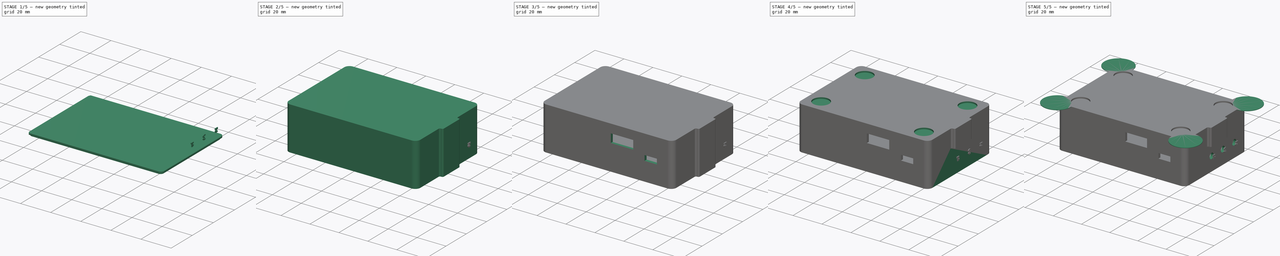
[diagram: build sequence overview — one tinted view per stage of 5, left to right]
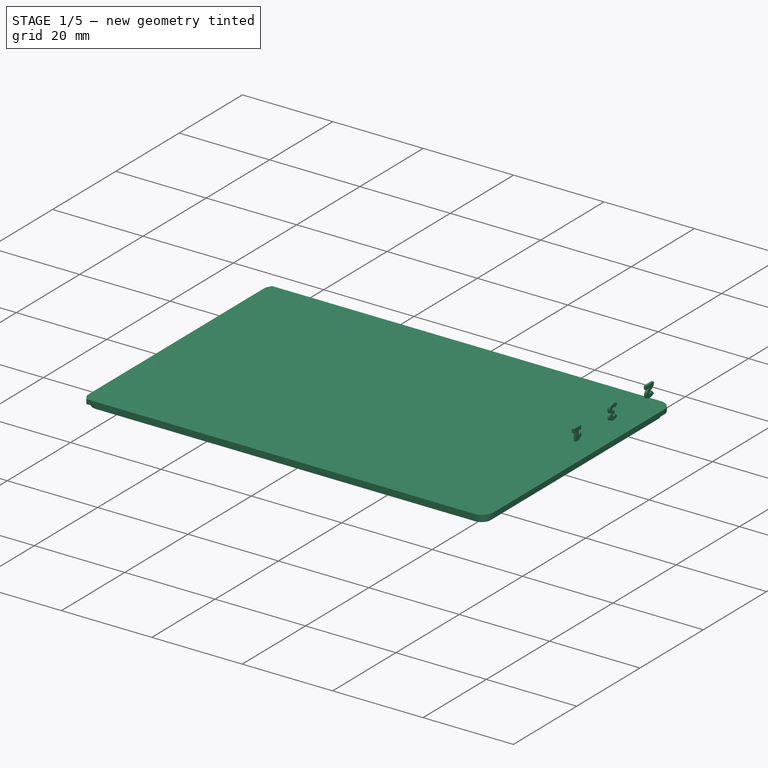
[diagram: stage 1 of 5 — iso view after this stage's code; geometry added in this stage tinted green]
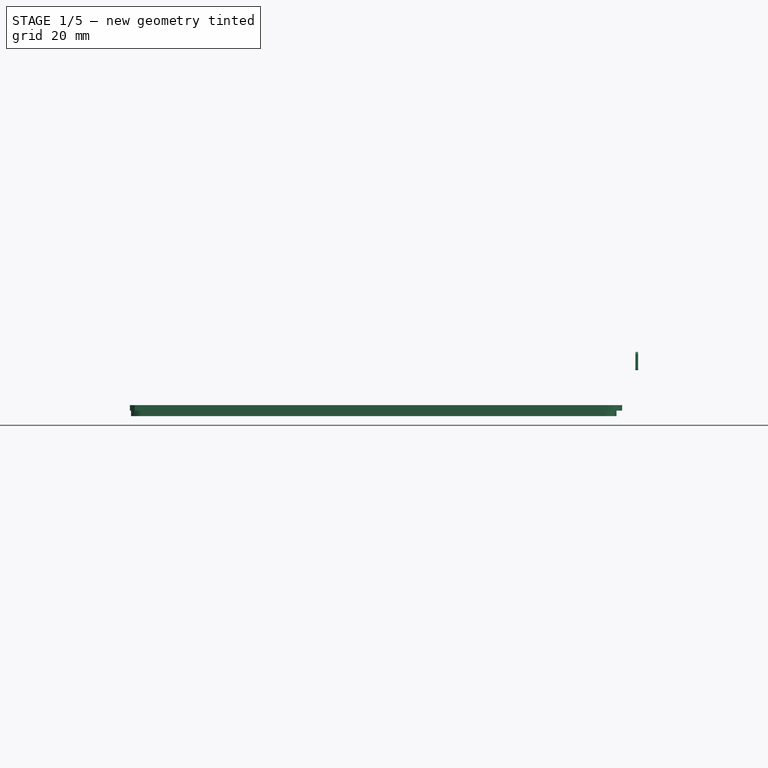
[diagram: stage 1 of 5 — front view after this stage's code; geometry added in this stage tinted green]
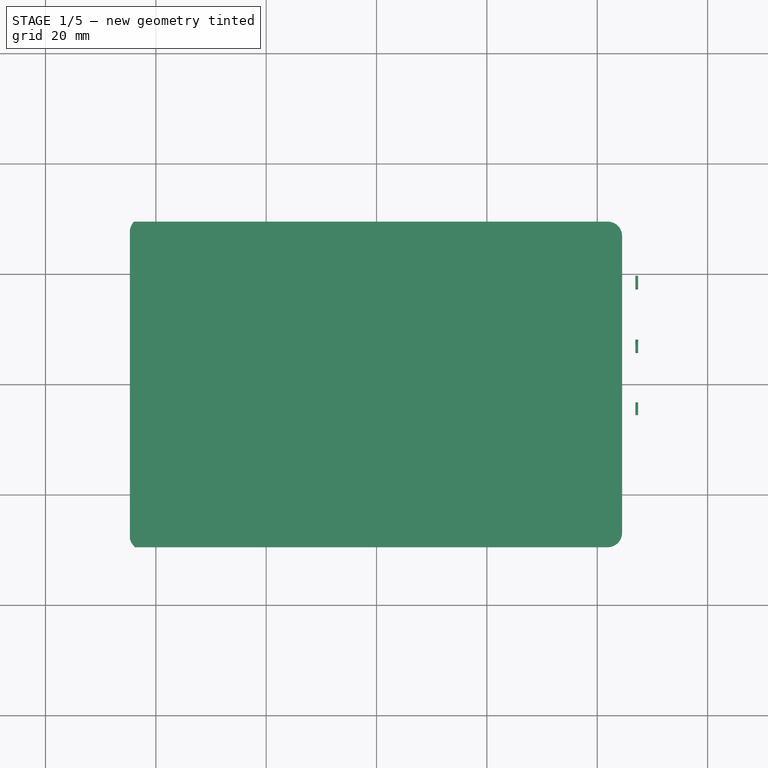
[diagram: stage 1 of 5 — top view after this stage's code; geometry added in this stage tinted green]
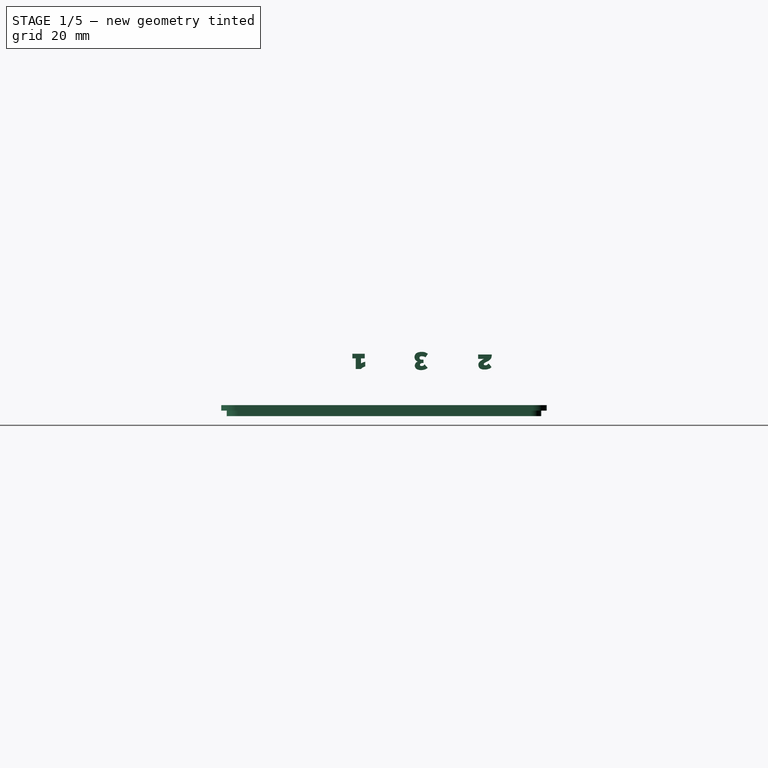
[diagram: stage 1 of 5 — right view after this stage's code; geometry added in this stage tinted green]
FCSTD DOCUMENT  (FreeCAD 0.17R13541 (Git))
Label: Final despues de cortar
License: All rights reserved
LicenseURL: http://en.wikipedia.org/wiki/All_rights_reserved
objects: Sketcher::SketchObject×22, PartDesign::Pocket×14, PartDesign::Pad×7, PartDesign::Body×3, Part::Part2DObjectPython×3, Part::Extrusion×3, Part::Cut×1, PartDesign::ShapeBinder×1, Image::ImagePlane×1, Part::Fillet×1
note: 76 computed .brp shape members not serialized (recipe doc carries the construction recipe); baked Part::Feature solids carry a one-line shape summary decoded from their .brp

FEATURE [Sketcher::SketchObject] Sketch013
  MapMode = 5
  Placement = pos=(0,0,1) rot=(1,0,0;3.14159rad)
  sketch-geometry (16):
    g0: LineSegment StartX=-43.7911 StartY=29.5 StartZ=0 EndX=41.9 EndY=29.5 EndZ=0
    g1: LineSegment StartX=41.9 StartY=-29.5 StartZ=0 EndX=-43.9938 EndY=-29.5 EndZ=0
    g2: LineSegment StartX=-44.7 StartY=-28.067 StartZ=0 EndX=-44.7 EndY=27.9861 EndZ=0
    g3: LineSegment StartX=44.5 StartY=26.9 StartZ=0 EndX=44.5 EndY=-8 EndZ=0
    g4: LineSegment StartX=44.5 StartY=-8 StartZ=0 EndX=44.5 EndY=-26.9 EndZ=0
    g5: ArcOfCircle CenterX=41.9 CenterY=-26.9 CenterZ=0 NormalX=0 NormalY=0 NormalZ=1 AngleXU=0 Radius=2.6 StartAngle=4.71239 EndAngle=6.28319
    g6: ArcOfCircle CenterX=41.9 CenterY=26.9 CenterZ=0 NormalX=0 NormalY=0 NormalZ=1 AngleXU=0 Radius=2.6 StartAngle=0 EndAngle=1.5708
    g7: GeomPoint X=-44.7 Y=-0.028254 Z=0
    g8: GeomPoint X=0 Y=31 Z=0
    g9: GeomPoint X=45.5 Y=16.6361 Z=0
    g10: GeomPoint X=1.52967 Y=-31 Z=0
    g11: GeomPoint X=47.8 Y=2.52852 Z=0
    g12: GeomPoint X=48.1013 Y=8 Z=0
    g13: GeomPoint X=48.1721 Y=-8 Z=0
    g14: ArcOfCircle CenterX=-41.1982 CenterY=-27.2319 CenterZ=0 NormalX=0 NormalY=0 NormalZ=1 AngleXU=0 Radius=3.6 StartAngle=3.3757 EndAngle=3.82319
    g15: ArcOfCircle CenterX=-41.2533 CenterY=26.9467 CenterZ=0 NormalX=0 NormalY=0 NormalZ=1 AngleXU=0 Radius=3.6 StartAngle=2.35314 EndAngle=2.84869
  constraints (32):
    c: Horizontal(g0)
    c: Horizontal(g1)
    c: Vertical(g2)
    c: Vertical(g3)
    c: Vertical(g4)
    c: Tangent(g1,g5) = 1.5708
    c: Tangent(g4,g5) = 1.5708
    c: Tangent(g0,g6) = 1.5708
    c: Tangent(g3,g6) = 1.5708
    c: DistanceX(g7,g-1) = 44.7
    c: DistanceX(g7,g2) = 0
    c: PointOnObject(g8,g-2)
    c: DistanceY(g-1,g8) = 31
    c: DistanceY(g0,g8) = 1.5
    c: DistanceX(g6,g3) = 2.6
    c: DistanceX(g3,g9) = 1
    c: DistanceX(g4,g9) = 1
    c: DistanceY(g10,g-1) = 31
    c: DistanceY(g10,g1) = 1.5
    c: DistanceY(g1,g5) = 2.6
    c: DistanceX(g-1,g11) = 47.8
    c: DistanceY(g-1,g12) = 8
    c: DistanceY(g13,g-1) = 8
    c: DistanceX(g-1,g3) = 44.5
    c: Coincident(g14,g2)
    c: Coincident(g14,g1)
    c: Distance(g14,g1) = 3.6
    c: PointOnObject(g15,g0)
    c: Coincident(g2,g15)
    c: Coincident(g15,g0)
    c: Distance(g15,g2) = 3.6
    c: Coincident(g4,g3)
FEATURE [PartDesign::Pad] Pad001
  Length = 1
  Length2 = 100
  Placement = pos=(0,0,1) rot=(1,0,0;3.14159rad)
  Profile = -> Sketch013
  Refine = true
  Reversed = true
  Type = 0
FEATURE [PartDesign::ShapeBinder] CopyPad001
FEATURE [Sketcher::SketchObject] Sketch027
  MapMode = 5
  Placement = pos=(0,0,0) rot=(1,0,0;3.14159rad)
  sketch-geometry (224):
    g0: ArcOfCircle CenterX=-19.7406 CenterY=4.62812 CenterZ=0 NormalX=0 NormalY=0 NormalZ=1 AngleXU=0 Radius=0.795127 StartAngle=5.49723 EndAngle=10.2873
    g1: GeomPoint X=-19.8641 Y=4.27998 Z=0
    g2: GeomPoint X=-19.8641 Y=4.66254 Z=0
    g3: GeomPoint X=-19.6072 Y=4.66254 Z=0
    g4: GeomPoint X=-19.6072 Y=4.02425 Z=0
    g5: ArcOfCircle CenterX=-19.7285 CenterY=4.6248 CenterZ=0 NormalX=0 NormalY=0 NormalZ=1 AngleXU=0 Radius=0.535224 StartAngle=5.52413 EndAngle=10.1295
    g6: LineSegment StartX=-20.1363 StartY=4.27808 StartZ=0 EndX=-19.8641 EndY=4.27998 EndZ=0
    g7: LineSegment StartX=-19.8641 StartY=4.27998 StartZ=0 EndX=-19.8641 EndY=4.66254 EndZ=0
    g8: LineSegment StartX=-19.8641 StartY=4.66254 StartZ=0 EndX=-19.6072 EndY=4.66254 EndZ=0
    g9: LineSegment StartX=-19.6072 StartY=4.66254 StartZ=0 EndX=-19.6072 EndY=4.02425 EndZ=0
    g10: LineSegment StartX=-19.6072 StartY=4.02425 StartZ=0 EndX=-20.2578 EndY=4.02425 EndZ=0
    g11: LineSegment StartX=-19.3402 StartY=4.25644 StartZ=0 EndX=-19.1786 EndY=4.06556 EndZ=0
    g12: LineSegment StartX=-20.4881 StartY=3.60859 StartZ=0 EndX=-20.4881 EndY=3.89027 EndZ=0
    g13: LineSegment StartX=-20.4881 StartY=3.89027 StartZ=0 EndX=-18.9788 EndY=3.89027 EndZ=0
    g14: LineSegment StartX=-18.9788 StartY=3.89027 StartZ=0 EndX=-18.9788 EndY=3.10042 EndZ=0
    g15: LineSegment StartX=-20.4881 StartY=3.60859 StartZ=0 EndX=-20.045 EndY=3.60859 EndZ=0
    g16: LineSegment StartX=-20.045 StartY=3.60859 StartZ=0 EndX=-20.045 EndY=3.10395 EndZ=0
    g17: LineSegment StartX=-19.7755 StartY=3.60478 StartZ=0 EndX=-19.2479 EndY=3.60478 EndZ=0
    g18: LineSegment StartX=-19.2479 StartY=3.60478 StartZ=0 EndX=-19.2479 EndY=3.17842 EndZ=0
    g19: LineSegment StartX=-19.7755 StartY=3.60478 StartZ=0 EndX=-19.7755 EndY=3.17189 EndZ=0
    g20: ArcOfCircle CenterX=-19.5116 CenterY=3.16886 CenterZ=0 NormalX=0 NormalY=0 NormalZ=1 AngleXU=0 Radius=0.263905 StartAngle=3.13009 EndAngle=6.31941
    g21: ArcOfCircle CenterX=-19.5116 CenterY=3.16886 CenterZ=0 NormalX=0 NormalY=0 NormalZ=1 AngleXU=0 Radius=0.537244 StartAngle=3.26271 EndAngle=6.15545
    g22: ArcOfCircle CenterX=-19.8025 CenterY=1.87687 CenterZ=0 NormalX=0 NormalY=0 NormalZ=1 AngleXU=0 Radius=0.689414 StartAngle=0.0341089 EndAngle=3.14953
    g23: LineSegment StartX=-20.2948 StartY=1.23749 StartZ=0 EndX=-20.2282 EndY=1.32123 EndZ=0
    g24: LineSegment StartX=-20.2282 StartY=1.32123 StartZ=0 EndX=-20.272 EndY=1.37262 EndZ=0
    g25: LineSegment StartX=-20.272 StartY=1.37262 StartZ=0 EndX=-20.2948 EndY=1.41068 EndZ=0
    g26: LineSegment StartX=-20.2948 StartY=1.41068 StartZ=0 EndX=-20.331 EndY=1.4773 EndZ=0
    g27: LineSegment StartX=-20.331 StartY=1.4773 StartZ=0 EndX=-20.3614 EndY=1.54201 EndZ=0
    g28: LineSegment StartX=-20.3614 StartY=1.54201 StartZ=0 EndX=-20.3824 EndY=1.61053 EndZ=0
    g29: LineSegment StartX=-20.3824 StartY=1.61053 StartZ=0 EndX=-20.3976 EndY=1.68095 EndZ=0
    g30: LineSegment StartX=-20.3976 StartY=1.68095 StartZ=0 EndX=-20.4014 EndY=1.7723 EndZ=0
    g31: LineSegment StartX=-20.4014 StartY=1.7723 StartZ=0 EndX=-20.3938 EndY=1.87271 EndZ=0
    g32: LineSegment StartX=-20.2948 StartY=1.23749 StartZ=0 EndX=-20.3291 EndY=1.27746 EndZ=0
    g33: LineSegment StartX=-20.3291 StartY=1.27746 StartZ=0 EndX=-20.3709 EndY=1.33646 EndZ=0
    g34: LineSegment StartX=-20.3709 StartY=1.33646 StartZ=0 EndX=-20.4108 EndY=1.40196 EndZ=0
    g35: LineSegment StartX=-20.4108 StartY=1.40196 StartZ=0 EndX=-20.4401 EndY=1.47213 EndZ=0
    g36: LineSegment StartX=-20.4401 StartY=1.47213 StartZ=0 EndX=-20.4682 EndY=1.55889 EndZ=0
    g37: LineSegment StartX=-20.4682 StartY=1.55889 StartZ=0 EndX=-20.4886 EndY=1.66605 EndZ=0
    g38: LineSegment StartX=-20.4886 StartY=1.66605 StartZ=0 EndX=-20.4919 EndY=1.75663 EndZ=0
    g39: LineSegment StartX=-20.4919 StartY=1.75663 StartZ=0 EndX=-20.4919 EndY=1.87139 EndZ=0
    g40: LineSegment StartX=-19.3851 StartY=1.32031 StartZ=0 EndX=-19.3187 EndY=1.24249 EndZ=0
    g41: LineSegment StartX=-19.3187 StartY=1.24249 StartZ=0 EndX=-19.2817 EndY=1.27821 EndZ=0
    g42: LineSegment StartX=-19.2817 StartY=1.27821 StartZ=0 EndX=-19.2473 EndY=1.32924 EndZ=0
    g43: LineSegment StartX=-19.2473 StartY=1.32924 StartZ=0 EndX=-19.1962 EndY=1.4211 EndZ=0
    g44: LineSegment StartX=-19.1962 StartY=1.4211 StartZ=0 EndX=-19.1656 EndY=1.48999 EndZ=0
    g45: LineSegment StartX=-19.1656 StartY=1.48999 StartZ=0 EndX=-19.1363 EndY=1.58823 EndZ=0
    g46: LineSegment StartX=-19.1363 StartY=1.58823 StartZ=0 EndX=-19.1171 EndY=1.69795 EndZ=0
    g47: LineSegment StartX=-19.1171 StartY=1.69795 StartZ=0 EndX=-19.1133 EndY=1.80256 EndZ=0
    g48: LineSegment StartX=-19.2209 StartY=1.77064 StartZ=0 EndX=-19.2167 EndY=1.68774 EndZ=0
    g49: LineSegment StartX=-19.2167 StartY=1.68774 StartZ=0 EndX=-19.2243 EndY=1.63671 EndZ=0
    g50: LineSegment StartX=-19.2243 StartY=1.63671 StartZ=0 EndX=-19.2383 EndY=1.58057 EndZ=0
    g51: LineSegment StartX=-19.2383 StartY=1.58057 StartZ=0 EndX=-19.2524 EndY=1.53465 EndZ=0
    g52: LineSegment StartX=-19.2524 StartY=1.53465 StartZ=0 EndX=-19.269 EndY=1.4951 EndZ=0
    g53: LineSegment StartX=-19.269 StartY=1.4951 StartZ=0 EndX=-19.2919 EndY=1.44534 EndZ=0
    g54: LineSegment StartX=-19.2919 StartY=1.44534 StartZ=0 EndX=-19.3149 EndY=1.40834 EndZ=0
    g55: LineSegment StartX=-19.3149 StartY=1.40834 StartZ=0 EndX=-19.3519 EndY=1.35603 EndZ=0
    g56: LineSegment StartX=-19.3519 StartY=1.35603 StartZ=0 EndX=-19.3851 EndY=1.32031 EndZ=0
    g57: ArcOfCircle CenterX=-19.7938 CenterY=0.518184 CenterZ=0 NormalX=0 NormalY=0 NormalZ=1 AngleXU=0 Radius=0.2332 StartAngle=2.2469 EndAngle=3.99089
    g58: ArcOfCircle CenterX=-19.7938 CenterY=0.518184 CenterZ=0 NormalX=0 NormalY=0 NormalZ=1 AngleXU=0 Radius=0.337803 StartAngle=2.27077 EndAngle=3.95002
    g59: ArcOfCircle CenterX=-19.7938 CenterY=0.518184 CenterZ=0 NormalX=0 NormalY=0 NormalZ=1 AngleXU=0 Radius=0.45624 StartAngle=2.34187 EndAngle=3.94521
    g60: ArcOfCircle CenterX=-19.7938 CenterY=0.518184 CenterZ=0 NormalX=0 NormalY=0 NormalZ=1 AngleXU=0 Radius=0.562567 StartAngle=2.34239 EndAngle=3.94468
    g61: ArcOfCircle CenterX=-19.7938 CenterY=0.518184 CenterZ=0 NormalX=0 NormalY=0 NormalZ=1 AngleXU=0 Radius=0.66214 StartAngle=2.35071 EndAngle=3.91539
    g62: ArcOfCircle CenterX=-19.7938 CenterY=0.518184 CenterZ=0 NormalX=0 NormalY=0 NormalZ=1 AngleXU=0 Radius=0.769984 StartAngle=2.3806 EndAngle=3.88433
    g63: ArcOfCircle CenterX=-20.3028 CenterY=1.02314 CenterZ=0 NormalX=0 NormalY=0 NormalZ=1 AngleXU=0 Radius=0.0551826 StartAngle=5.61495 EndAngle=8.93297
    g64: ArcOfCircle CenterX=-20.3093 CenterY=0.0185191 CenterZ=0 NormalX=0 NormalY=0 NormalZ=1 AngleXU=0 Radius=0.0558335 StartAngle=3.5288 EndAngle=7.00581
    g65: ArcOfCircle CenterX=-20.1469 CenterY=0.150962 CenterZ=0 NormalX=0 NormalY=0 NormalZ=1 AngleXU=0 Radius=0.0531711 StartAngle=3.92566 EndAngle=7.10074
    g66: ArcOfCircle CenterX=-20.1491 CenterY=0.883262 CenterZ=0 NormalX=0 NormalY=0 NormalZ=1 AngleXU=0 Radius=0.053164 StartAngle=5.49009 EndAngle=8.6239
    g67: ArcOfCircle CenterX=-19.9839 CenterY=0.304357 CenterZ=0 NormalX=0 NormalY=0 NormalZ=1 AngleXU=0 Radius=0.0529001 StartAngle=3.75547 EndAngle=7.10481
    g68: ArcOfCircle CenterX=-19.9845 CenterY=0.729976 CenterZ=0 NormalX=0 NormalY=0 NormalZ=1 AngleXU=0 Radius=0.0538102 StartAngle=5.69422 EndAngle=8.37833
    g69: LineSegment StartX=-19.8577 StartY=0.209475 StartZ=0 EndX=-19.8577 EndY=0.883536 EndZ=0
    g70: LineSegment StartX=-19.8577 StartY=0.883536 StartZ=0 EndX=-19.8463 EndY=0.917306 EndZ=0
    g71: LineSegment StartX=-19.8463 StartY=0.917306 StartZ=0 EndX=-19.8366 EndY=0.939663 EndZ=0
    g72: LineSegment StartX=-19.8366 StartY=0.939663 StartZ=0 EndX=-19.8154 EndY=0.972338 EndZ=0
    g73: LineSegment StartX=-19.8154 StartY=0.972338 StartZ=0 EndX=-19.789 EndY=0.990682 EndZ=0
    g74: LineSegment StartX=-19.789 StartY=0.990682 StartZ=0 EndX=-19.7552 EndY=1.00387 EndZ=0
    g75: LineSegment StartX=-19.7552 StartY=1.00387 StartZ=0 EndX=-19.7254 EndY=1.00903 EndZ=0
    g76: LineSegment StartX=-19.7254 StartY=1.00903 StartZ=0 EndX=-19.691 EndY=1.00501 EndZ=0
    g77: LineSegment StartX=-19.691 StartY=1.00501 StartZ=0 EndX=-19.6572 EndY=0.998708 EndZ=0
    g78: LineSegment StartX=-19.6572 StartY=0.998708 StartZ=0 EndX=-19.6245 EndY=0.979217 EndZ=0
    g79: LineSegment StartX=-19.6245 StartY=0.979217 StartZ=0 EndX=-19.5947 EndY=0.952274 EndZ=0
    g80: LineSegment StartX=-19.5947 StartY=0.952274 StartZ=0 EndX=-19.5826 EndY=0.926478 EndZ=0
    g81: LineSegment StartX=-19.5826 StartY=0.926478 StartZ=0 EndX=-19.5729 EndY=0.896669 EndZ=0
    g82: LineSegment StartX=-19.5729 StartY=0.896669 StartZ=0 EndX=-19.5454 EndY=0.900682 EndZ=0
    g83: LineSegment StartX=-19.5454 StartY=0.900682 StartZ=0 EndX=-19.5225 EndY=0.904121 EndZ=0
    g84: LineSegment StartX=-19.5225 StartY=0.904121 StartZ=0 EndX=-19.4823 EndY=0.904121 EndZ=0
    g85: LineSegment StartX=-19.4823 StartY=0.904121 StartZ=0 EndX=-19.4594 EndY=0.894949 EndZ=0
    g86: LineSegment StartX=-19.4594 StartY=0.894949 StartZ=0 EndX=-19.4379 EndY=0.879305 EndZ=0
    g87: LineSegment StartX=-19.4379 StartY=0.879305 StartZ=0 EndX=-19.4166 EndY=0.859241 EndZ=0
    g88: LineSegment StartX=-19.4166 StartY=0.859241 StartZ=0 EndX=-19.4052 EndY=0.830006 EndZ=0
    g89: LineSegment StartX=-19.4052 StartY=0.830006 StartZ=0 EndX=-19.3989 EndY=0.803063 EndZ=0
    g90: LineSegment StartX=-19.3989 StartY=0.803063 StartZ=0 EndX=-19.4046 EndY=0.777266 EndZ=0
    g91: LineSegment StartX=-19.4046 StartY=0.777266 StartZ=0 EndX=-19.4086 EndY=0.748604 EndZ=0
    g92: LineSegment StartX=-19.4086 StartY=0.748604 StartZ=0 EndX=-19.4103 EndY=0.737712 EndZ=0
    g93: LineSegment StartX=-19.4103 StartY=0.737712 StartZ=0 EndX=-19.3908 EndY=0.727967 EndZ=0
    g94: LineSegment StartX=-19.3908 StartY=0.727967 StartZ=0 EndX=-19.3668 EndY=0.720514 EndZ=0
    g95: LineSegment StartX=-19.3668 StartY=0.720514 StartZ=0 EndX=-19.3421 EndY=0.70733 EndZ=0
    g96: LineSegment StartX=-19.3421 StartY=0.70733 StartZ=0 EndX=-19.3261 EndY=0.692998 EndZ=0
    g97: LineSegment StartX=-19.3261 StartY=0.692998 StartZ=0 EndX=-19.2986 EndY=0.663762 EndZ=0
    g98: LineSegment StartX=-19.2986 StartY=0.663762 StartZ=0 EndX=-19.2745 EndY=0.63338 EndZ=0
    g99: LineSegment StartX=-19.2745 StartY=0.63338 StartZ=0 EndX=-19.2545 EndY=0.597695 EndZ=0
    g100: LineSegment StartX=-19.2545 StartY=0.597695 StartZ=0 EndX=-19.2436 EndY=0.560434 EndZ=0
    g101: LineSegment StartX=-19.2436 StartY=0.560434 StartZ=0 EndX=-19.2327 EndY=0.51572 EndZ=0
    g102: LineSegment StartX=-19.2327 StartY=0.51572 StartZ=0 EndX=-19.2287 EndY=0.478458 EndZ=0
    g103: LineSegment StartX=-19.2287 StartY=0.478458 StartZ=0 EndX=-19.2305 EndY=0.44521 EndZ=0
    g104: LineSegment StartX=-19.2305 StartY=0.44521 StartZ=0 EndX=-19.2368 EndY=0.421133 EndZ=0
    g105: LineSegment StartX=-19.2368 StartY=0.421133 StartZ=0 EndX=-19.2471 EndY=0.386165 EndZ=0
    g106: LineSegment StartX=-19.2471 StartY=0.386165 StartZ=0 EndX=-19.262 EndY=0.358075 EndZ=0
    g107: LineSegment StartX=-19.262 StartY=0.358075 StartZ=0 EndX=-19.2815 EndY=0.321387 EndZ=0
    g108: LineSegment StartX=-19.2815 StartY=0.321387 StartZ=0 EndX=-19.2952 EndY=0.305336 EndZ=0
    g109: LineSegment StartX=-19.2952 StartY=0.305336 StartZ=0 EndX=-19.3193 EndY=0.282979 EndZ=0
    g110: LineSegment StartX=-19.3193 StartY=0.282979 StartZ=0 EndX=-19.3417 EndY=0.268075 EndZ=0
    g111: LineSegment StartX=-19.3417 StartY=0.268075 StartZ=0 EndX=-19.3646 EndY=0.25489 EndZ=0
    g112: LineSegment StartX=-19.3646 StartY=0.25489 StartZ=0 EndX=-19.3927 EndY=0.241705 EndZ=0
    g113: LineSegment StartX=-19.3927 StartY=0.241705 StartZ=0 EndX=-19.4271 EndY=0.233106 EndZ=0
    g114: LineSegment StartX=-19.4271 StartY=0.233106 StartZ=0 EndX=-19.4552 EndY=0.227947 EndZ=0
    g115: LineSegment StartX=-19.4552 StartY=0.227947 StartZ=0 EndX=-19.4873 EndY=0.223934 EndZ=0
    g116: LineSegment StartX=-19.4873 StartY=0.223934 StartZ=0 EndX=-19.5027 EndY=0.223361 EndZ=0
    g117: LineSegment StartX=-19.5027 StartY=0.223361 StartZ=0 EndX=-19.5053 EndY=0.189806 EndZ=0
    g118: LineSegment StartX=-19.5053 StartY=0.189806 StartZ=0 EndX=-19.5156 EndY=0.161585 EndZ=0
    g119: LineSegment StartX=-19.5156 StartY=0.161585 StartZ=0 EndX=-19.5284 EndY=0.130798 EndZ=0
    g120: LineSegment StartX=-19.5284 StartY=0.130798 StartZ=0 EndX=-19.5404 EndY=0.104287 EndZ=0
    g121: LineSegment StartX=-19.5404 StartY=0.104287 StartZ=0 EndX=-19.5643 EndY=0.07521 EndZ=0
    g122: LineSegment StartX=-19.5643 StartY=0.07521 StartZ=0 EndX=-19.596 EndY=0.054685 EndZ=0
    g123: LineSegment StartX=-19.596 StartY=0.054685 StartZ=0 EndX=-19.6285 EndY=0.039292 EndZ=0
    g124: LineSegment StartX=-19.6285 StartY=0.039292 StartZ=0 EndX=-19.6627 EndY=0.029885 EndZ=0
    g125: LineSegment StartX=-19.6627 StartY=0.029885 StartZ=0 EndX=-19.696 EndY=0.029885 EndZ=0
    g126: LineSegment StartX=-19.696 StartY=0.029885 StartZ=0 EndX=-19.7405 EndY=0.040147 EndZ=0
    g127: LineSegment StartX=-19.7405 StartY=0.040147 StartZ=0 EndX=-19.7721 EndY=0.060672 EndZ=0
    g128: LineSegment StartX=-19.7721 StartY=0.060672 StartZ=0 EndX=-19.7995 EndY=0.082052 EndZ=0
    g129: LineSegment StartX=-19.7995 StartY=0.082052 StartZ=0 EndX=-19.8192 EndY=0.105142 EndZ=0
    g130: LineSegment StartX=-19.8192 StartY=0.105142 StartZ=0 EndX=-19.8397 EndY=0.136784 EndZ=0
    g131: LineSegment StartX=-19.8397 StartY=0.136784 StartZ=0 EndX=-19.8538 EndY=0.171431 EndZ=0
    g132: LineSegment StartX=-19.8538 StartY=0.171431 StartZ=0 EndX=-19.8577 EndY=0.209475 EndZ=0
    g133: LineSegment StartX=-19.9059 StartY=-0.386614 StartZ=0 EndX=-20.517 EndY=-0.386614 EndZ=0
    g134: LineSegment StartX=-20.517 StartY=-0.386614 StartZ=0 EndX=-20.517 EndY=-0.273071 EndZ=0
    g135: LineSegment StartX=-20.517 StartY=-0.273071 StartZ=0 EndX=-19.453 EndY=-0.273071 EndZ=0
    g136: LineSegment StartX=-19.453 StartY=-0.273071 StartZ=0 EndX=-19.453 EndY=-0.381557 EndZ=0
    g137: LineSegment StartX=-19.453 StartY=-0.381557 StartZ=0 EndX=-19.6337 EndY=-0.382638 EndZ=0
    g138: LineSegment StartX=-19.888 StartY=-1.12999 StartZ=0 EndX=-20.5113 EndY=-1.12999 EndZ=0
    g139: LineSegment StartX=-20.5113 StartY=-1.12999 StartZ=0 EndX=-20.5113 EndY=-1.23878 EndZ=0
    g140: LineSegment StartX=-20.5113 StartY=-1.23878 StartZ=0 EndX=-19.8614 EndY=-1.23878 EndZ=0
    g141: ArcOfCircle CenterX=-19.9003 CenterY=-0.758382 CenterZ=0 NormalX=0 NormalY=0 NormalZ=1 AngleXU=0 Radius=0.371811 StartAngle=4.74553 EndAngle=7.86908
    g142: ArcOfCircle CenterX=-19.9064 CenterY=-0.768463 CenterZ=0 NormalX=0 NormalY=0 NormalZ=1 AngleXU=0 Radius=0.472468 StartAngle=4.80791 EndAngle=7.23871
    g143: LineSegment StartX=-19.9309 StartY=-1.51071 StartZ=0 EndX=-20.5141 EndY=-1.51071 EndZ=0
    g144: LineSegment StartX=-20.5141 StartY=-1.51071 StartZ=0 EndX=-20.5141 EndY=-1.41116 EndZ=0
    g145: LineSegment StartX=-20.5141 StartY=-1.41116 StartZ=0 EndX=-19.4526 EndY=-1.41116 EndZ=0
    g146: LineSegment StartX=-19.4526 StartY=-1.41116 StartZ=0 EndX=-19.4526 EndY=-1.50826 EndZ=0
    g147: LineSegment StartX=-19.4526 StartY=-1.50826 StartZ=0 EndX=-19.643 EndY=-1.50826 EndZ=0
    g148: LineSegment StartX=-19.8923 StartY=-2.26386 StartZ=0 EndX=-20.5116 EndY=-2.26386 EndZ=0
    g149: LineSegment StartX=-20.5116 StartY=-2.26386 StartZ=0 EndX=-20.5116 EndY=-2.37687 EndZ=0
    g150: LineSegment StartX=-20.5116 StartY=-2.37687 StartZ=0 EndX=-19.863 EndY=-2.37687 EndZ=0
    g151: ArcOfCircle CenterX=-19.9068 CenterY=-1.88704 CenterZ=0 NormalX=0 NormalY=0 NormalZ=1 AngleXU=0 Radius=0.377101 StartAngle=4.75094 EndAngle=7.91798
    g152: ArcOfCircle CenterX=-19.9176 CenterY=-1.90087 CenterZ=0 NormalX=0 NormalY=0 NormalZ=1 AngleXU=0 Radius=0.479129 StartAngle=4.82662 EndAngle=7.2436
    g153: ArcOfCircle CenterX=-19.9806 CenterY=-3.03787 CenterZ=0 NormalX=0 NormalY=0 NormalZ=1 AngleXU=0 Radius=0.462932 StartAngle=5.51082 EndAngle=10.3554
    g154: ArcOfCircle CenterX=-19.9897 CenterY=-3.04111 CenterZ=0 NormalX=0 NormalY=0 NormalZ=1 AngleXU=0 Radius=0.555355 StartAngle=5.40084 EndAngle=10.3514
    g155: LineSegment StartX=-19.7282 StartY=-3.40876 StartZ=0 EndX=-19.7647 EndY=-3.42502 EndZ=0
    g156: LineSegment StartX=-19.7647 StartY=-3.42502 StartZ=0 EndX=-19.8024 EndY=-3.4359 EndZ=0
    g157: LineSegment StartX=-19.8024 StartY=-3.4359 StartZ=0 EndX=-19.8485 EndY=-3.4464 EndZ=0
    g158: LineSegment StartX=-19.8485 StartY=-3.4464 StartZ=0 EndX=-19.9007 EndY=-3.45238 EndZ=0
    g159: LineSegment StartX=-19.9007 StartY=-3.45238 StartZ=0 EndX=-19.9435 EndY=-3.45409 EndZ=0
    g160: LineSegment StartX=-19.9435 StartY=-3.45409 StartZ=0 EndX=-19.9435 EndY=-2.60566 EndZ=0
    g161: LineSegment StartX=-19.9435 StartY=-2.60566 StartZ=0 EndX=-20.0385 EndY=-2.60566 EndZ=0
    g162: LineSegment StartX=-20.0385 StartY=-2.60566 StartZ=0 EndX=-20.0385 EndY=-3.55259 EndZ=0
    g163: LineSegment StartX=-20.0385 StartY=-3.55259 StartZ=0 EndX=-19.9456 EndY=-3.55259 EndZ=0
    g164: LineSegment StartX=-19.9456 StartY=-3.55259 StartZ=0 EndX=-19.9003 EndY=-3.55259 EndZ=0
    g165: LineSegment StartX=-19.9003 StartY=-3.55259 StartZ=0 EndX=-19.8455 EndY=-3.54746 EndZ=0
    g166: LineSegment StartX=-19.8455 StartY=-3.54746 StartZ=0 EndX=-19.8019 EndY=-3.53634 EndZ=0
    g167: LineSegment StartX=-19.8019 StartY=-3.53634 StartZ=0 EndX=-19.7566 EndY=-3.52694 EndZ=0
    g168: LineSegment StartX=-19.7566 StartY=-3.52694 StartZ=0 EndX=-19.6839 EndY=-3.497 EndZ=0
    g169: LineSegment StartX=-19.6839 StartY=-3.497 StartZ=0 EndX=-19.6369 EndY=-3.46997 EndZ=0
    g170: ArcOfCircle CenterX=-19.9882 CenterY=-4.2027 CenterZ=0 NormalX=0 NormalY=0 NormalZ=1 AngleXU=0 Radius=0.444117 StartAngle=5.49731 EndAngle=10.2102
    g171: ArcOfCircle CenterX=-19.9882 CenterY=-4.2027 CenterZ=0 NormalX=0 NormalY=0 NormalZ=1 AngleXU=0 Radius=0.548709 StartAngle=5.49035 EndAngle=10.2181
    g172: LineSegment StartX=-20.3022 StartY=-4.51674 StartZ=0 EndX=-20.3731 EndY=-4.59375 EndZ=0
    g173: LineSegment StartX=-19.6743 StartY=-4.51689 StartZ=0 EndX=-19.6031 EndY=-4.59357 EndZ=0
    g174: LineSegment StartX=-20.1961 StartY=-4.9458 StartZ=0 EndX=-19.5455 EndY=-4.9458 EndZ=0
    g175: LineSegment StartX=-19.5455 StartY=-4.9458 StartZ=0 EndX=-19.5455 EndY=-5.30662 EndZ=0
    g176: LineSegment StartX=-19.5455 StartY=-5.30662 StartZ=0 EndX=-19.4543 EndY=-5.30662 EndZ=0
    g177: LineSegment StartX=-19.4543 StartY=-5.30662 StartZ=0 EndX=-19.4543 EndY=-4.94572 EndZ=0
    g178: LineSegment StartX=-19.4543 StartY=-4.94572 StartZ=0 EndX=-19.1386 EndY=-4.94572 EndZ=0
    g179: LineSegment StartX=-19.1386 StartY=-4.94572 StartZ=0 EndX=-19.1386 EndY=-4.84072 EndZ=0
    g180: LineSegment StartX=-19.1386 StartY=-4.84072 StartZ=0 EndX=-19.4556 EndY=-4.84072 EndZ=0
    g181: LineSegment StartX=-19.4556 StartY=-4.84072 StartZ=0 EndX=-19.4556 EndY=-4.61554 EndZ=0
    g182: LineSegment StartX=-19.4556 StartY=-4.61554 StartZ=0 EndX=-19.546 EndY=-4.61554 EndZ=0
    g183: LineSegment StartX=-19.546 StartY=-4.61554 StartZ=0 EndX=-19.546 EndY=-4.83995 EndZ=0
    g184: LineSegment StartX=-19.546 StartY=-4.83995 StartZ=0 EndX=-20.1936 EndY=-4.83995 EndZ=0
    g185: LineSegment StartX=-20.1936 StartY=-4.83995 StartZ=0 EndX=-20.2455 EndY=-4.83995 EndZ=0
    g186: LineSegment StartX=-20.2455 StartY=-4.83995 StartZ=0 EndX=-20.2756 EndY=-4.84174 EndZ=0
    g187: LineSegment StartX=-20.2756 StartY=-4.84174 StartZ=0 EndX=-20.3133 EndY=-4.84827 EndZ=0
    g188: LineSegment StartX=-20.3133 StartY=-4.84827 StartZ=0 EndX=-20.3559 EndY=-4.86095 EndZ=0
    g189: LineSegment StartX=-20.3559 StartY=-4.86095 StartZ=0 EndX=-20.3805 EndY=-4.86941 EndZ=0
    g190: LineSegment StartX=-20.3805 StartY=-4.86941 StartZ=0 EndX=-20.3993 EndY=-4.87824 EndZ=0
    g191: LineSegment StartX=-20.3993 StartY=-4.87824 StartZ=0 EndX=-20.4293 EndY=-4.89515 EndZ=0
    g192: LineSegment StartX=-20.4293 StartY=-4.89515 StartZ=0 EndX=-20.4589 EndY=-4.91744 EndZ=0
    g193: LineSegment StartX=-20.4589 StartY=-4.91744 StartZ=0 EndX=-20.4781 EndY=-4.93934 EndZ=0
    g194: LineSegment StartX=-20.4781 StartY=-4.93934 StartZ=0 EndX=-20.4935 EndY=-4.9647 EndZ=0
    g195: LineSegment StartX=-20.4935 StartY=-4.9647 StartZ=0 EndX=-20.5103 EndY=-5.00083 EndZ=0
    g196: LineSegment StartX=-20.5103 StartY=-5.00083 StartZ=0 EndX=-20.5217 EndY=-5.03064 EndZ=0
    g197: LineSegment StartX=-20.5217 StartY=-5.03064 StartZ=0 EndX=-20.528 EndY=-5.0679 EndZ=0
    g198: LineSegment StartX=-20.528 StartY=-5.0679 StartZ=0 EndX=-20.5349 EndY=-5.11319 EndZ=0
    g199: LineSegment StartX=-20.5349 StartY=-5.11319 StartZ=0 EndX=-20.5332 EndY=-5.15446 EndZ=0
    g200: LineSegment StartX=-20.5332 StartY=-5.15446 StartZ=0 EndX=-20.5292 EndY=-5.20319 EndZ=0
    g201: LineSegment StartX=-20.5292 StartY=-5.20319 StartZ=0 EndX=-20.5183 EndY=-5.24045 EndZ=0
    g202: LineSegment StartX=-20.5183 StartY=-5.24045 StartZ=0 EndX=-20.4965 EndY=-5.29892 EndZ=0
    g203: LineSegment StartX=-20.4965 StartY=-5.29892 StartZ=0 EndX=-20.4782 EndY=-5.33791 EndZ=0
    g204: LineSegment StartX=-20.4782 StartY=-5.33791 StartZ=0 EndX=-20.3979 EndY=-5.30064 EndZ=0
    g205: LineSegment StartX=-20.3979 StartY=-5.30064 StartZ=0 EndX=-20.4117 EndY=-5.26224 EndZ=0
    g206: LineSegment StartX=-20.4117 StartY=-5.26224 StartZ=0 EndX=-20.4277 EndY=-5.21924 EndZ=0
    g207: LineSegment StartX=-20.4277 StartY=-5.21924 StartZ=0 EndX=-20.4352 EndY=-5.18255 EndZ=0
    g208: LineSegment StartX=-20.4352 StartY=-5.18255 StartZ=0 EndX=-20.4386 EndY=-5.13727 EndZ=0
    g209: LineSegment StartX=-20.4386 StartY=-5.13727 StartZ=0 EndX=-20.4386 EndY=-5.09083 EndZ=0
    g210: LineSegment StartX=-20.4386 StartY=-5.09083 StartZ=0 EndX=-20.4271 EndY=-5.05758 EndZ=0
    g211: LineSegment StartX=-20.4271 StartY=-5.05758 StartZ=0 EndX=-20.4174 EndY=-5.02605 EndZ=0
    g212: LineSegment StartX=-20.4174 StartY=-5.02605 StartZ=0 EndX=-20.3922 EndY=-4.99453 EndZ=0
    g213: LineSegment StartX=-20.3922 StartY=-4.99453 StartZ=0 EndX=-20.3601 EndY=-4.97274 EndZ=0
    g214: LineSegment StartX=-20.3601 StartY=-4.97274 StartZ=0 EndX=-20.3165 EndY=-4.95726 EndZ=0
    g215: LineSegment StartX=-20.3165 StartY=-4.95726 StartZ=0 EndX=-20.2683 EndY=-4.94809 EndZ=0
    g216: LineSegment StartX=-20.2683 StartY=-4.94809 StartZ=0 EndX=-20.2271 EndY=-4.9458 EndZ=0
    g217: LineSegment StartX=-20.2271 StartY=-4.9458 StartZ=0 EndX=-20.1961 EndY=-4.9458 EndZ=0
    g218: LineSegment StartX=-20.2572 StartY=-3.40913 StartZ=0 EndX=-20.3232 EndY=-3.48516 EndZ=0
    g219: LineSegment StartX=-19.6491 StartY=-3.36092 StartZ=0 EndX=-19.6542 EndY=-3.36625 EndZ=0
    g220: LineSegment StartX=-19.6542 StartY=-3.36625 StartZ=0 EndX=-19.7282 EndY=-3.40876 EndZ=0
    g221: LineSegment StartX=-19.1135 StartY=1.90038 StartZ=0 EndX=-19.1143 EndY=1.85449 EndZ=0
    g222: LineSegment StartX=-19.1143 StartY=1.85449 StartZ=0 EndX=-19.1133 EndY=1.80256 EndZ=0
    g223: ArcOfCircle CenterX=-19.8025 CenterY=1.87687 CenterZ=0 NormalX=0 NormalY=0 NormalZ=1 AngleXU=0 Radius=0.591263 StartAngle=6.10254 EndAngle=9.43182
  constraints (280):
    c: Coincident(g6,g1)
    c: Coincident(g6,g7)
    c: Coincident(g7,g2)
    c: Vertical(g7)
    c: Coincident(g7,g8)
    c: Coincident(g8,g3)
    c: Horizontal(g8)
    c: Coincident(g8,g9)
    c: Coincident(g9,g4)
    c: Vertical(g9)
    c: Coincident(g9,g10)
    c: Coincident(g10,g0)
    c: Horizontal(g10)
    c: Coincident(g5,g11)
    c: Coincident(g0,g11)
    c: Vertical(g12)
    c: Coincident(g12,g13)
    c: Horizontal(g13)
    c: Coincident(g13,g14)
    c: Vertical(g14)
    c: Coincident(g12,g15)
    c: Horizontal(g15)
    c: Coincident(g15,g16)
    c: Vertical(g16)
    c: Horizontal(g17)
    c: Coincident(g17,g18)
    c: Vertical(g18)
    c: Coincident(g17,g19)
    c: Vertical(g19)
    c: Coincident(g20,g19)
    c: Coincident(g20,g18)
    c: Coincident(g21,g20)
    c: Coincident(g21,g16)
    c: Coincident(g21,g14)
    c: Coincident(g23,g24)
    c: Coincident(g24,g25)
    c: Coincident(g25,g26)
    c: Coincident(g26,g27)
    c: Coincident(g27,g28)
    c: Coincident(g28,g29)
    c: Coincident(g29,g30)
    c: Coincident(g30,g31)
    c: Coincident(g23,g32)
    c: Coincident(g32,g33)
    c: Coincident(g33,g34)
    c: Coincident(g34,g35)
    c: Coincident(g35,g36)
    c: Coincident(g36,g37)
    c: Coincident(g37,g38)
    c: Coincident(g38,g39)
    c: Coincident(g39,g22)
    c: Vertical(g39)
    c: Coincident(g40,g41)
    c: Coincident(g41,g42)
    c: Coincident(g42,g43)
    c: Coincident(g43,g44)
    c: Coincident(g44,g45)
    c: Coincident(g45,g46)
    c: Coincident(g46,g47)
    c: Coincident(g48,g49)
    c: Coincident(g49,g50)
    c: Coincident(g50,g51)
    c: Coincident(g51,g52)
    c: Coincident(g52,g53)
    c: Coincident(g53,g54)
    c: Coincident(g54,g55)
    c: Coincident(g55,g56)
    c: Coincident(g56,g40)
    c: Coincident(g58,g57)
    c: Coincident(g59,g57)
    c: Coincident(g60,g57)
    c: Coincident(g61,g57)
    c: Coincident(g62,g57)
    c: Coincident(g63,g62)
    c: Coincident(g63,g61)
    c: Coincident(g64,g61)
    c: Coincident(g64,g62)
    c: Coincident(g65,g59)
    c: Coincident(g65,g60)
    c: Coincident(g66,g59)
    c: Coincident(g66,g60)
    c: Coincident(g67,g57)
    c: Coincident(g67,g58)
    c: Coincident(g68,g57)
    c: Coincident(g68,g58)
    c: Vertical(g69)
    c: Coincident(g69,g70)
    c: Coincident(g70,g71)
    c: Coincident(g71,g72)
    c: Coincident(g72,g73)
    c: Coincident(g73,g74)
    c: Coincident(g74,g75)
    c: Coincident(g75,g76)
    c: Coincident(g76,g77)
    c: Coincident(g77,g78)
    c: Coincident(g78,g79)
    c: Coincident(g79,g80)
    c: Coincident(g80,g81)
    c: Coincident(g81,g82)
    c: Coincident(g82,g83)
    c: Coincident(g83,g84)
    c: Horizontal(g84)
    c: Coincident(g84,g85)
    c: Coincident(g85,g86)
    c: Coincident(g86,g87)
    c: Coincident(g87,g88)
    c: Coincident(g88,g89)
    c: Coincident(g89,g90)
    c: Coincident(g90,g91)
    c: Coincident(g91,g92)
    c: Coincident(g92,g93)
    c: Coincident(g93,g94)
    c: Coincident(g94,g95)
    c: Coincident(g95,g96)
    c: Coincident(g96,g97)
    c: Coincident(g97,g98)
    c: Coincident(g98,g99)
    c: Coincident(g99,g100)
    c: Coincident(g100,g101)
    c: Coincident(g101,g102)
    c: Coincident(g102,g103)
    c: Coincident(g103,g104)
    c: Coincident(g104,g105)
    c: Coincident(g105,g106)
    c: Coincident(g106,g107)
    c: Coincident(g107,g108)
    c: Coincident(g108,g109)
    c: Coincident(g109,g110)
    c: Coincident(g110,g111)
    c: Coincident(g111,g112)
    c: Coincident(g112,g113)
    c: Coincident(g113,g114)
    c: Coincident(g114,g115)
    c: Coincident(g115,g116)
    c: Coincident(g116,g117)
    c: Coincident(g117,g118)
    c: Coincident(g118,g119)
    c: Coincident(g119,g120)
    c: Coincident(g120,g121)
    c: Coincident(g121,g122)
    c: Coincident(g122,g123)
    c: Coincident(g123,g124)
    c: Coincident(g124,g125)
    c: Horizontal(g125)
    c: Coincident(g125,g126)
    c: Coincident(g126,g127)
    c: Coincident(g127,g128)
    c: Coincident(g128,g129)
    c: Coincident(g129,g130)
    c: Coincident(g130,g131)
    c: Coincident(g131,g132)
    c: Coincident(g132,g69)
    c: Horizontal(g133)
    c: Coincident(g133,g134)
    c: Vertical(g134)
    c: Coincident(g134,g135)
    c: Horizontal(g135)
    c: Coincident(g135,g136)
    c: Vertical(g136)
    c: Coincident(g136,g137)
    c: Horizontal(g138)
    c: Coincident(g138,g139)
    c: Vertical(g139)
    c: Coincident(g139,g140)
    c: Horizontal(g140)
    c: Coincident(g141,g133)
    c: Coincident(g141,g138)
    c: Coincident(g142,g137)
    c: Coincident(g142,g140)
    c: Horizontal(g143)
    c: Coincident(g143,g144)
    c: Vertical(g144)
    c: Coincident(g144,g145)
    c: Horizontal(g145)
    c: Coincident(g145,g146)
    c: Vertical(g146)
    c: Coincident(g146,g147)
    c: Horizontal(g147)
    c: Horizontal(g148)
    c: Coincident(g148,g149)
    c: Vertical(g149)
    c: Coincident(g149,g150)
    c: Horizontal(g150)
    c: Coincident(g151,g143)
    c: Coincident(g151,g148)
    c: Coincident(g152,g147)
    c: Coincident(g152,g150)
    c: Coincident(g155,g156)
    c: Coincident(g156,g157)
    c: Coincident(g157,g158)
    c: Coincident(g158,g159)
    c: Coincident(g159,g160)
    c: Vertical(g160)
    c: Coincident(g160,g161)
    c: Horizontal(g161)
    c: Coincident(g161,g162)
    c: Vertical(g162)
    c: Coincident(g162,g163)
    c: Horizontal(g163)
    c: Coincident(g163,g164)
    c: Horizontal(g164)
    c: Coincident(g164,g165)
    c: Coincident(g165,g166)
    c: Coincident(g166,g167)
    c: Coincident(g167,g168)
    c: Coincident(g168,g169)
    c: Coincident(g169,g154)
    c: Coincident(g171,g170)
    c: Coincident(g172,g170)
    c: Coincident(g172,g171)
    c: Coincident(g173,g170)
    c: Coincident(g173,g171)
    c: Horizontal(g174)
    c: Coincident(g174,g175)
    c: Vertical(g175)
    c: Coincident(g175,g176)
    c: Horizontal(g176)
    c: Coincident(g176,g177)
    c: Vertical(g177)
    c: Coincident(g177,g178)
    c: Horizontal(g178)
    c: Coincident(g178,g179)
    c: Vertical(g179)
    c: Coincident(g179,g180)
    c: Horizontal(g180)
    c: Coincident(g180,g181)
    c: Vertical(g181)
    c: Coincident(g181,g182)
    c: Horizontal(g182)
    c: Coincident(g182,g183)
    c: Vertical(g183)
    c: Coincident(g183,g184)
    c: Horizontal(g184)
    c: Coincident(g184,g185)
    c: Horizontal(g185)
    c: Coincident(g185,g186)
    c: Coincident(g186,g187)
    c: Coincident(g187,g188)
    c: Coincident(g188,g189)
    c: Coincident(g189,g190)
    c: Coincident(g190,g191)
    c: Coincident(g191,g192)
    c: Coincident(g192,g193)
    c: Coincident(g193,g194)
    c: Coincident(g194,g195)
    c: Coincident(g195,g196)
    c: Coincident(g196,g197)
    c: Coincident(g197,g198)
    c: Coincident(g198,g199)
    c: Coincident(g199,g200)
    c: Coincident(g200,g201)
    c: Coincident(g201,g202)
    c: Coincident(g202,g203)
    c: Coincident(g203,g204)
    c: Coincident(g204,g205)
    c: Coincident(g205,g206)
    c: Coincident(g206,g207)
    c: Coincident(g207,g208)
    c: Coincident(g208,g209)
    c: Vertical(g209)
    c: Coincident(g209,g210)
    c: Coincident(g210,g211)
    c: Coincident(g211,g212)
    c: Coincident(g212,g213)
    c: Coincident(g213,g214)
    c: Coincident(g214,g215)
    c: Coincident(g215,g216)
    c: Coincident(g216,g217)
    c: Coincident(g217,g174)
    c: Horizontal(g217)
    c: Coincident(g218,g154)
    c: Tangent(g153,g219) = 1.5708
    c: Coincident(g219,g220)
    c: Coincident(g220,g155)
    c: Coincident(g153,g218)
    c: Coincident(g222,g47)
    c: Coincident(g223,g31)
    c: Coincident(g223,g48)
    c: Coincident(g22,g221)
    c: Coincident(g221,g222)
FEATURE [PartDesign::Body] Body  label="Caja"
  Group = -> [Sketch001,Pad,Sketch002,Pocket,Sketch003,Pocket001,Sketch004,Pocket002,Sketch005,Pocket003,Sketch006,Pocket004,Sketch007,Pocket005,Sketch008,Pocket006,Sketch009,Pocket007,Sketch015,Pocket009,Sketch016,Pocket010,Sketch019,Pad004,Sketch020,Pocket011,Sketch021,Pocket012,Sketch022,Pocket013,Sketch025,Pad007,CopyPad001,Sketch027]
  Origin = -> Origin
  Tip = -> Pad007
FEATURE [Sketcher::SketchObject] Sketch
  MapMode = 5
  Placement = pos=(0,0,1) rot=(1,0,0;3.14159rad)
  Support = -> [Pad001]
  sketch-geometry (8):
    g0: LineSegment StartX=-42.5 StartY=28.5 StartZ=0 EndX=41.5 EndY=28.5 EndZ=0
    g1: LineSegment StartX=43.5 StartY=26.5 StartZ=0 EndX=43.5 EndY=-26.5 EndZ=0
    g2: LineSegment StartX=41.5 StartY=-28.5 StartZ=0 EndX=-42.5 EndY=-28.5 EndZ=0
    g3: LineSegment StartX=-44.5 StartY=-26.5 StartZ=0 EndX=-44.5 EndY=26.5 EndZ=0
    g4: ArcOfCircle CenterX=-42.5 CenterY=26.5 CenterZ=0 NormalX=0 NormalY=0 NormalZ=1 AngleXU=0 Radius=2 StartAngle=1.5708 EndAngle=3.14159
    g5: ArcOfCircle CenterX=41.5 CenterY=26.5 CenterZ=0 NormalX=0 NormalY=0 NormalZ=1 AngleXU=0 Radius=2 StartAngle=0 EndAngle=1.5708
    g6: ArcOfCircle CenterX=41.5 CenterY=-26.5 CenterZ=0 NormalX=0 NormalY=0 NormalZ=1 AngleXU=0 Radius=2 StartAngle=4.71239 EndAngle=6.28319
    g7: ArcOfCircle CenterX=-42.5 CenterY=-26.5 CenterZ=0 NormalX=0 NormalY=0 NormalZ=1 AngleXU=0 Radius=2 StartAngle=3.14159 EndAngle=4.71239
  constraints (20):
    c: Horizontal(g0)
    c: Horizontal(g2)
    c: Vertical(g1)
    c: Vertical(g3)
    c: Tangent(g0,g4) = 1.5708
    c: Tangent(g3,g4) = 1.5708
    c: Tangent(g0,g5) = 1.5708
    c: Tangent(g1,g5) = 1.5708
    c: Tangent(g1,g6) = 1.5708
    c: Tangent(g2,g6) = 1.5708
    c: Tangent(g2,g7) = 1.5708
    c: Tangent(g3,g7) = 1.5708
    c: DistanceY(g2,g7) = 2
    c: DistanceY(g4,g0) = 2
    c: DistanceY(g5,g0) = 2
    c: DistanceY(g2,g6) = 2
    c: DistanceY(g0) = 28.5
    c: DistanceY(g2) = -28.5
    c: DistanceX(g3,g-1) = 44.5
    c: DistanceX(g1) = 43.5
FEATURE [PartDesign::Pad] Pad008
  BaseFeature = -> Pad001
  Length = 1
  Length2 = 100
  Placement = pos=(0,0,1) rot=(1,0,0;3.14159rad)
  Profile = -> Sketch
  Refine = true
  Type = 0
FEATURE [Part::Part2DObjectPython] ShapeString  # Draft 2D object (typed FeaturePython)
  FontFile = <userpath>/PiSpot_HDMI/Raleway-Black.ttf
  Placement = pos=(46.9,-3.2,11.3) rot=(-0.57735,0.57735,-0.57735;2.0944rad)
  Size = 1.85
  String = 1
  Tracking = 0
FEATURE [Part::Extrusion] Extrusion
  Base = -> ShapeString
  Dir = (0.5,0,0)
  DirMode = 0
  FaceMakerClass = Part::FaceMakerBullseye
  LengthFwd = 0
  LengthRev = 0
  Solid = true
  Symmetric = false
FEATURE [Part::Part2DObjectPython] ShapeString001  # Draft 2D object (typed FeaturePython)
  FontFile = <userpath>/PiSpot_HDMI/Raleway-Black.ttf
  Placement = pos=(46.9,8.04,10.98) rot=(-0.57735,0.57735,-0.57735;2.0944rad)
  Size = 1.75
  String = 3
  Tracking = 0
FEATURE [Part::Extrusion] Extrusion001
  Base = -> ShapeString001
  Dir = (0.5,0,0)
  DirMode = 0
  FaceMakerClass = Part::FaceMakerBullseye
  LengthFwd = 0
  LengthRev = 0
  Solid = true
  Symmetric = false
FEATURE [Part::Part2DObjectPython] ShapeString002  # Draft 2D object (typed FeaturePython)
  FontFile = <userpath>/PiSpot_HDMI/Raleway-Black.ttf
  Placement = pos=(46.9,19.68,11.18) rot=(-0.57735,0.57735,-0.57735;2.0944rad)
  Size = 1.8
  String = 2
  Tracking = 0
FEATURE [Part::Extrusion] Extrusion002
  Base = -> ShapeString002
  Dir = (0.5,0,0)
  DirMode = 0
  FaceMakerClass = Part::FaceMakerBullseye
  LengthFwd = 0
  LengthRev = 0
  Solid = true
  Symmetric = false
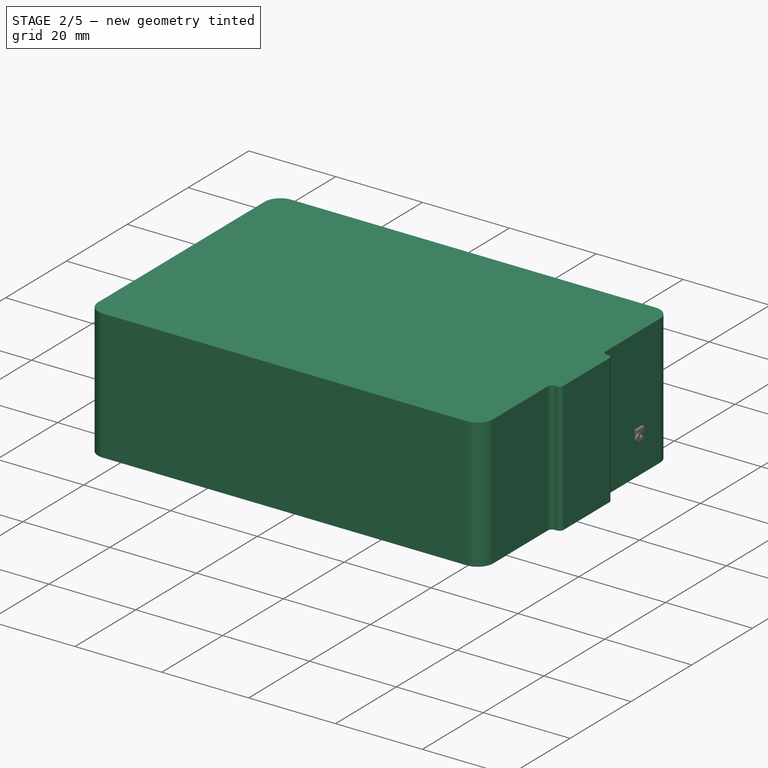
[diagram: stage 2 of 5 — iso view after this stage's code; geometry added in this stage tinted green]
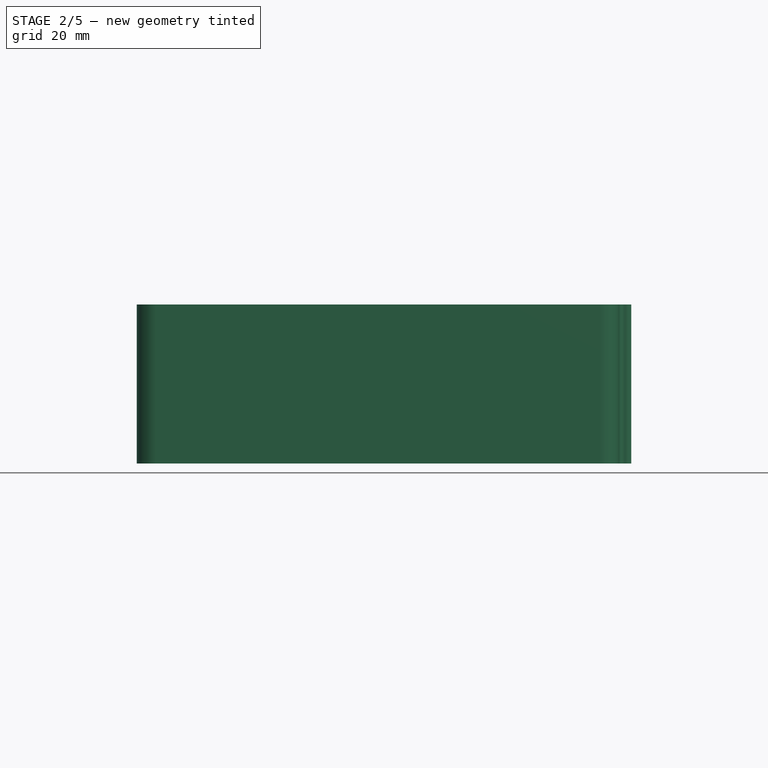
[diagram: stage 2 of 5 — front view after this stage's code; geometry added in this stage tinted green]
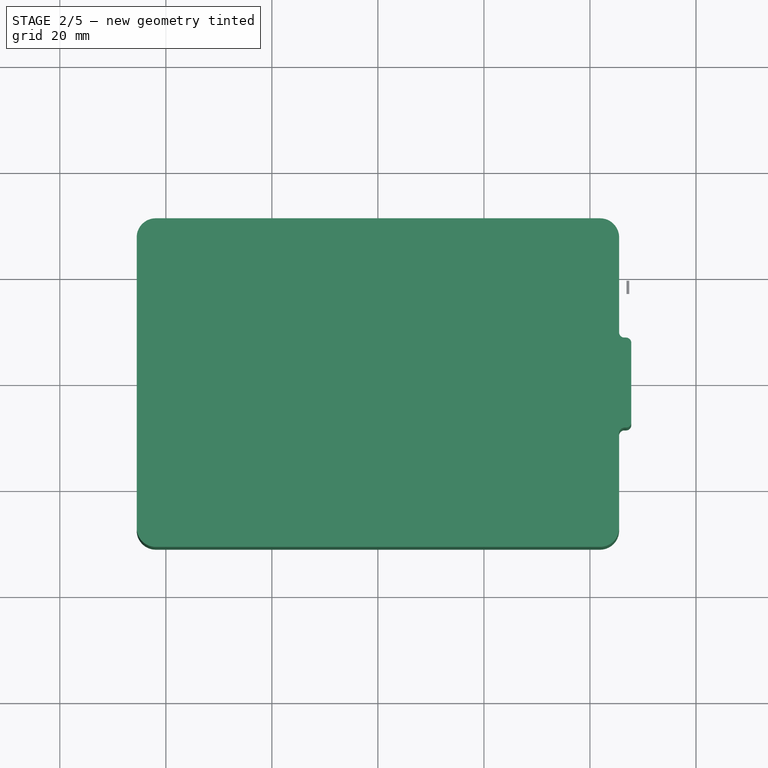
[diagram: stage 2 of 5 — top view after this stage's code; geometry added in this stage tinted green]
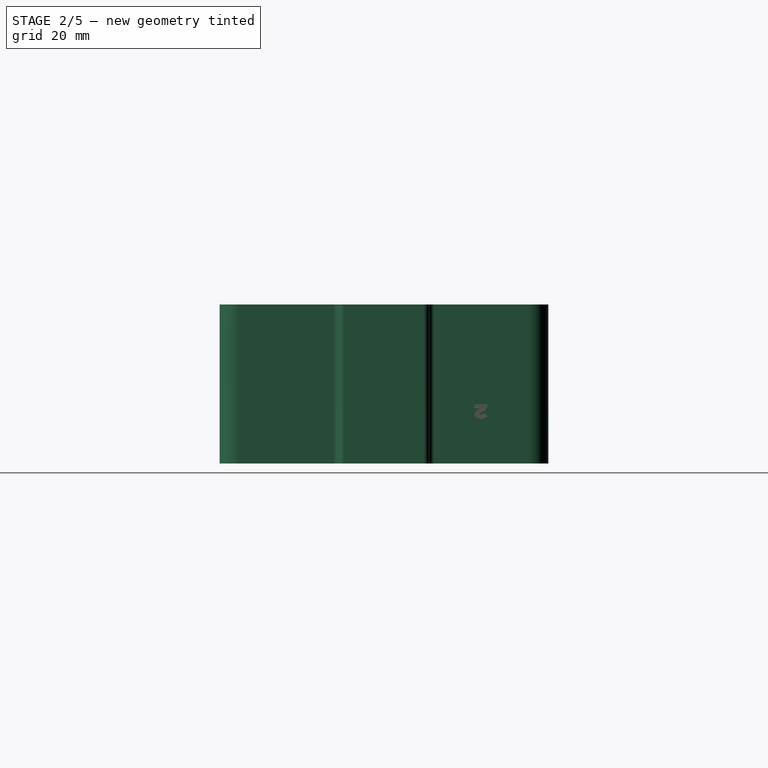
[diagram: stage 2 of 5 — right view after this stage's code; geometry added in this stage tinted green]
FEATURE [Sketcher::SketchObject] Sketch001
  MapMode = 5
  Support = -> [XY_Plane]
  sketch-geometry (24):
    g0: LineSegment StartX=-41.9 StartY=31 StartZ=0 EndX=41.9 EndY=31 EndZ=0
    g1: LineSegment StartX=41.9 StartY=-31 StartZ=0 EndX=-41.9 EndY=-31 EndZ=0
    g2: LineSegment StartX=-45.5 StartY=-27.4 StartZ=0 EndX=-45.5 EndY=27.4 EndZ=0
    g3: ArcOfCircle CenterX=-41.9 CenterY=27.4 CenterZ=0 NormalX=0 NormalY=0 NormalZ=1 AngleXU=0 Radius=3.6 StartAngle=1.5708 EndAngle=3.14159
    g4: ArcOfCircle CenterX=41.9 CenterY=27.4 CenterZ=0 NormalX=0 NormalY=0 NormalZ=1 AngleXU=0 Radius=3.6 StartAngle=1.55397e-07 EndAngle=1.5708
    g5: ArcOfCircle CenterX=41.9 CenterY=-27.4 CenterZ=0 NormalX=0 NormalY=0 NormalZ=1 AngleXU=0 Radius=3.6 StartAngle=4.71239 EndAngle=6.28319
    g6: ArcOfCircle CenterX=-41.9 CenterY=-27.4 CenterZ=0 NormalX=0 NormalY=0 NormalZ=1 AngleXU=0 Radius=3.6 StartAngle=3.14159 EndAngle=4.71239
    g7: GeomPoint X=45.5 Y=31 Z=0
    g8: GeomPoint X=45.5 Y=-31 Z=0
    g9: GeomPoint X=-45.5 Y=31 Z=0
    g10: LineSegment StartX=47.8 StartY=-7.5 StartZ=0 EndX=47.8 EndY=7.5 EndZ=0
    g11: LineSegment StartX=45.5 StartY=27.4 StartZ=0 EndX=45.5 EndY=9.5 EndZ=0
    g12: LineSegment StartX=46.5 StartY=8.5 StartZ=0 EndX=46.8 EndY=8.5 EndZ=0
    g13: LineSegment StartX=46.8 StartY=-8.5 StartZ=0 EndX=46.5 EndY=-8.5 EndZ=0
    g14: LineSegment StartX=45.5 StartY=-9.5 StartZ=0 EndX=45.5 EndY=-27.4 EndZ=0
    g15: ArcOfCircle CenterX=46.5 CenterY=9.5 CenterZ=0 NormalX=0 NormalY=0 NormalZ=1 AngleXU=0 Radius=1 StartAngle=3.14159 EndAngle=4.71239
    g16: GeomPoint X=45.5 Y=8.5 Z=0
    g17: ArcOfCircle CenterX=46.5 CenterY=-9.5 CenterZ=0 NormalX=0 NormalY=0 NormalZ=1 AngleXU=0 Radius=1 StartAngle=1.57079 EndAngle=3.14159
    g18: GeomPoint X=45.5 Y=-8.5 Z=0
    g19: ArcOfCircle CenterX=46.8 CenterY=7.5 CenterZ=0 NormalX=0 NormalY=0 NormalZ=1 AngleXU=0 Radius=1 StartAngle=0 EndAngle=1.5708
    g20: ArcOfCircle CenterX=46.8 CenterY=-7.5 CenterZ=0 NormalX=0 NormalY=0 NormalZ=1 AngleXU=0 Radius=1 StartAngle=4.71238 EndAngle=6.28319
    g21: GeomPoint X=47.8 Y=8.5 Z=0
    g22: GeomPoint X=47.8 Y=-8.5 Z=0
    g23: GeomPoint X=-45.5 Y=-31 Z=0
  constraints (57):
    c: Horizontal(g0)
    c: Horizontal(g1)
    c: Vertical(g2)
    c: Tangent(g0,g3) = 1.5708
    c: Tangent(g2,g3) = 1.5708
    c: Tangent(g0,g4) = 1.5708
    c: Tangent(g1,g5) = 1.5708
    c: Tangent(g2,g6) = 1.5708
    c: Tangent(g1,g6) = 1.5708
    c: DistanceY(g3,g0) = 3.6
    c: DistanceY(g1,g6) = 3.6
    c: DistanceY(g1,g5) = 3.6
    c: DistanceX(g0,g7) = 3.6
    c: DistanceX(g1,g8) = 3.6
    c: DistanceY(g8,g7) = 62
    c: DistanceY(g2,g9) = 3.6
    c: DistanceX(g9,g0) = 3.6
    c: DistanceX(g9,g7) = 91
    c: Symmetric(g7,g9,g-2)
    c: Vertical(g10)
    c: Coincident(g11,g4)
    c: Coincident(g14,g5)
    c: Vertical(g14)
    c: DistanceX(g4,g4) = 3.6
    c: DistanceY(g4,g0) = 3.6
    c: Tangent(g11,g15) = -1.5708
    c: Tangent(g12,g15) = -1.5708
    c: DistanceX(g11,g15) = 1
    c: DistanceY(g12,g15) = 1
    c: DistanceX(g16,g12) = 1
    c: DistanceY(g16,g11) = 1
    c: DistanceY(g16,g7) = 22.5
    c: Tangent(g13,g17) = -1.5708
    c: Tangent(g14,g17) = -1.5708
    c: DistanceY(g17,g13) = 1
    c: DistanceX(g14,g17) = 1
    c: DistanceX(g18,g13) = 1
    c: DistanceY(g14,g18) = 1
    c: DistanceY(g8,g18) = 22.5
    c: DistanceY(g8,g5) = 3.6
    c: DistanceX(g5,g5) = 3.6
    c: Symmetric(g3,g6,g-1)
    c: Tangent(g10,g19) = -1.5708
    c: Tangent(g12,g19) = 1.5708
    c: Tangent(g10,g20) = -1.5708
    c: Tangent(g13,g20) = 1.5708
    c: DistanceY(g22,g10) = 1
    c: DistanceX(g13,g22) = 1
    c: DistanceX(g20,g10) = 1
    c: DistanceX(g19,g10) = 1
    c: DistanceY(g10,g21) = 1
    c: DistanceX(g12,g21) = 1
    c: DistanceX(g18,g22) = 2.3
    c: DistanceX(g16,g21) = 2.3
    c: DistanceY(g23,g2) = 3.6
    c: DistanceX(g23,g1) = 3.6
    c: DistanceX(g23,g8) = 91
FEATURE [PartDesign::Pad] Pad
  Length = 30
  Length2 = 100
  Profile = -> Sketch001
  Refine = true
  Type = 0
FEATURE [Sketcher::SketchObject] Sketch002
  MapMode = 5
  Placement = pos=(0,0,0) rot=(1,0,0;3.14159rad)
  Support = -> [Pad]
  sketch-geometry (23):
    g0: LineSegment StartX=-41.9 StartY=29 StartZ=0 EndX=41.9 EndY=29 EndZ=0
    g1: LineSegment StartX=41.9 StartY=-29 StartZ=0 EndX=-41.9 EndY=-29 EndZ=0
    g2: LineSegment StartX=-43.5 StartY=-27.4 StartZ=0 EndX=-43.5 EndY=27.4 EndZ=0
    g3: LineSegment StartX=43.5 StartY=27.4 StartZ=0 EndX=43.5 EndY=7.5 EndZ=0
    g4: LineSegment StartX=44.5 StartY=6.5 StartZ=0 EndX=44.8 EndY=6.5 EndZ=0
    g5: LineSegment StartX=45.8 StartY=5.5 StartZ=0 EndX=45.8 EndY=-5.5 EndZ=0
    g6: LineSegment StartX=44.8 StartY=-6.5 StartZ=0 EndX=44.5 EndY=-6.5 EndZ=0
    g7: LineSegment StartX=43.5 StartY=-7.5 StartZ=0 EndX=43.5 EndY=-27.4 EndZ=0
    g8: ArcOfCircle CenterX=-41.9 CenterY=27.4 CenterZ=0 NormalX=0 NormalY=0 NormalZ=1 AngleXU=0 Radius=1.6 StartAngle=1.5708 EndAngle=3.14159
    g9: ArcOfCircle CenterX=-41.9 CenterY=-27.4 CenterZ=0 NormalX=0 NormalY=0 NormalZ=1 AngleXU=0 Radius=1.6 StartAngle=3.14159 EndAngle=4.71239
    g10: ArcOfCircle CenterX=41.9 CenterY=-27.4 CenterZ=0 NormalX=0 NormalY=0 NormalZ=1 AngleXU=0 Radius=1.6 StartAngle=4.71239 EndAngle=6.28319
    g11: ArcOfCircle CenterX=44.5 CenterY=-7.5 CenterZ=0 NormalX=0 NormalY=0 NormalZ=1 AngleXU=0 Radius=1 StartAngle=1.5708 EndAngle=3.14159
    g12: ArcOfCircle CenterX=44.8 CenterY=-5.5 CenterZ=0 NormalX=0 NormalY=0 NormalZ=1 AngleXU=0 Radius=1 StartAngle=4.71239 EndAngle=6.28319
    g13: ArcOfCircle CenterX=44.8 CenterY=5.5 CenterZ=0 NormalX=0 NormalY=0 NormalZ=1 AngleXU=0 Radius=1 StartAngle=0 EndAngle=1.5708
    g14: ArcOfCircle CenterX=44.5 CenterY=7.5 CenterZ=0 NormalX=0 NormalY=0 NormalZ=1 AngleXU=0 Radius=1 StartAngle=3.14159 EndAngle=4.71239
    g15: ArcOfCircle CenterX=41.9 CenterY=27.4 CenterZ=0 NormalX=0 NormalY=0 NormalZ=1 AngleXU=0 Radius=1.6 StartAngle=0 EndAngle=1.5708
    g16: GeomPoint X=-45.5 Y=-0.028254 Z=0
    g17: GeomPoint X=0 Y=31 Z=0
    g18: GeomPoint X=45.5 Y=16.6361 Z=0
    g19: GeomPoint X=1.52967 Y=-31 Z=0
    g20: GeomPoint X=47.8 Y=2.52852 Z=0
    g21: GeomPoint X=48.1013 Y=8.5 Z=0
    g22: GeomPoint X=48.1721 Y=-8.5 Z=0
  constraints (48):
    c: Horizontal(g0)
    c: Horizontal(g1)
    c: Vertical(g2)
    c: Vertical(g3)
    c: Vertical(g5)
    c: Horizontal(g6)
    c: Vertical(g7)
    c: Tangent(g0,g8) = 1.5708
    c: Tangent(g2,g8) = 1.5708
    c: Tangent(g1,g9) = 1.5708
    c: Tangent(g2,g9) = 1.5708
    c: Tangent(g1,g10) = 1.5708
    c: Tangent(g7,g10) = 1.5708
    c: Tangent(g6,g11) = -1.5708
    c: Tangent(g7,g11) = -1.5708
    c: Tangent(g5,g12) = 1.5708
    c: Tangent(g6,g12) = 1.5708
    c: Tangent(g4,g13) = 1.5708
    c: Tangent(g5,g13) = 1.5708
    c: Tangent(g3,g14) = -1.5708
    c: Tangent(g4,g14) = -1.5708
    c: Tangent(g0,g15) = 1.5708
    c: Tangent(g3,g15) = 1.5708
    c: DistanceY(g8,g0) = 1.6
    c: DistanceX(g16,g-1) = 45.5
    c: DistanceX(g16,g2) = 2
    c: PointOnObject(g17,g-2)
    c: DistanceY(g-1,g17) = 31
    c: DistanceY(g0,g17) = 2
    c: DistanceX(g15,g3) = 1.6
    c: DistanceX(g-1,g18) = 45.5
    c: DistanceX(g3,g18) = 2
    c: DistanceX(g7,g18) = 2
    c: DistanceY(g19,g-1) = 31
    c: DistanceY(g19,g1) = 2
    c: DistanceY(g1,g10) = 1.6
    c: DistanceY(g1,g9) = 1.6
    c: DistanceY(g4,g14) = 1
    c: DistanceX(g-1,g20) = 47.8
    c: DistanceX(g5,g20) = 2
    c: DistanceY(g4,g21) = 2
    c: DistanceY(g-1,g21) = 8.5
    c: DistanceY(g4,g21) = 2
    c: DistanceX(g12,g5) = 1
    c: DistanceY(g11,g6) = 1
    c: DistanceY(g22,g-1) = 8.5
    c: DistanceY(g22,g6) = 2
    c: DistanceX(g13,g5) = 1
FEATURE [PartDesign::Pocket] Pocket
  BaseFeature = -> Pad
  Length = 28
  Length2 = 100
  Profile = -> Sketch002
  Refine = true
  Type = 0
FEATURE [Sketcher::SketchObject] Sketch003
  MapMode = 5
  Placement = pos=(-45.5,0,0) rot=(0.57735,-0.57735,-0.57735;2.0944rad)
  Support = -> [Pocket]
  sketch-geometry (4):
    g0: LineSegment StartX=9.1 StartY=24.15 StartZ=0 EndX=25.6 EndY=24.15 EndZ=0
    g1: LineSegment StartX=25.6 StartY=24.15 StartZ=0 EndX=25.6 EndY=10.05 EndZ=0
    g2: LineSegment StartX=25.6 StartY=10.05 StartZ=0 EndX=9.1 EndY=10.05 EndZ=0
    g3: LineSegment StartX=9.1 StartY=10.05 StartZ=0 EndX=9.1 EndY=24.15 EndZ=0
  constraints (12):
    c: Coincident(g0,g1)
    c: Coincident(g1,g2)
    c: Coincident(g2,g3)
    c: Coincident(g3,g0)
    c: Horizontal(g0)
    c: Horizontal(g2)
    c: Vertical(g1)
    c: Vertical(g3)
    c: DistanceY(g-1,g1) = 10.05
    c: DistanceX(g0,g0) = 16.5
    c: DistanceY(g1,g1) = 14.1
    c: DistanceX(g-1,g1) = 25.6
FEATURE [PartDesign::Pocket] Pocket001
  BaseFeature = -> Pocket
  Length = 2
  Length2 = 100
  Profile = -> Sketch003
  Refine = true
  Type = 0
FEATURE [Image::ImagePlane] ImagePlane
  Placement = pos=(-16,23.3,0) rot=(0.707107,0.707107,0;3.14159rad)
  XSize = 487.8
  YSize = 117.9
FEATURE [Sketcher::SketchObject] Sketch028
  MapMode = 5
  Placement = pos=(0,0,0) rot=(1,0,0;3.14159rad)
  Support = -> [Pad008]
  sketch-geometry (22):
    g0: ArcOfCircle CenterX=-7.44072 CenterY=0 CenterZ=0 NormalX=0 NormalY=0 NormalZ=1 AngleXU=0 Radius=29.3319 StartAngle=2.359 EndAngle=3.92796
    g1: ArcOfCircle CenterX=-7.44072 CenterY=0 CenterZ=0 NormalX=0 NormalY=0 NormalZ=1 AngleXU=0 Radius=34.2661 StartAngle=2.3468 EndAngle=3.93419
    g2: ArcOfCircle CenterX=-7.44072 CenterY=0 CenterZ=0 NormalX=0 NormalY=0 NormalZ=1 AngleXU=0 Radius=20.1127 StartAngle=2.29827 EndAngle=3.95436
    g3: ArcOfCircle CenterX=-7.47131 CenterY=-0.0543922 CenterZ=0 NormalX=0 NormalY=0 NormalZ=1 AngleXU=0 Radius=24.484 StartAngle=2.32388 EndAngle=3.94025
    g4: ArcOfCircle CenterX=-7.47131 CenterY=-0.0543922 CenterZ=0 NormalX=0 NormalY=0 NormalZ=1 AngleXU=0 Radius=9.96797 StartAngle=2.2249 EndAngle=4.03217
    g5: ArcOfCircle CenterX=-7.44072 CenterY=0 CenterZ=0 NormalX=0 NormalY=0 NormalZ=1 AngleXU=0 Radius=14.6067 StartAngle=2.2696 EndAngle=4.00211
    g6: ArcOfCircle CenterX=-29.8987 CenterY=22.5202 CenterZ=0 NormalX=0 NormalY=0 NormalZ=1 AngleXU=0 Radius=2.47583 StartAngle=5.44675 EndAngle=8.52693
    g7: ArcOfCircle CenterX=-29.8561 CenterY=-22.5569 CenterZ=0 NormalX=0 NormalY=0 NormalZ=1 AngleXU=0 Radius=2.46936 StartAngle=3.98647 EndAngle=7.09758
    g8: ArcOfCircle CenterX=-22.8888 CenterY=-16.1243 CenterZ=0 NormalX=0 NormalY=0 NormalZ=1 AngleXU=0 Radius=2.22108 StartAngle=3.8654 EndAngle=7.03609
    g9: ArcOfCircle CenterX=-22.6625 CenterY=16.2357 CenterZ=0 NormalX=0 NormalY=0 NormalZ=1 AngleXU=0 Radius=2.21062 StartAngle=5.70164 EndAngle=8.63304
    g10: ArcOfCircle CenterX=-15.2494 CenterY=9.45745 CenterZ=0 NormalX=0 NormalY=0 NormalZ=1 AngleXU=0 Radius=2.34501 StartAngle=5.5315 EndAngle=8.59778
    g11: ArcOfCircle CenterX=-15.4608 CenterY=-9.3328 CenterZ=0 NormalX=0 NormalY=0 NormalZ=1 AngleXU=0 Radius=2.30134 StartAngle=4.00007 EndAngle=7.00983
    g12: ArcOfCircle CenterX=-3.09331 CenterY=15.9774 CenterZ=0 NormalX=0 NormalY=0 NormalZ=1 AngleXU=0 Radius=7.6891 StartAngle=0.303729 EndAngle=3.13953
    g13: ArcOfCircle CenterX=6.2002 CenterY=12.9269 CenterZ=0 NormalX=0 NormalY=0 NormalZ=1 AngleXU=0 Radius=5.69668 StartAngle=5.85903 EndAngle=8.20454
    g14: ArcOfCircle CenterX=7.60733 CenterY=-1.33725 CenterZ=0 NormalX=0 NormalY=0 NormalZ=1 AngleXU=0 Radius=12.5061 StartAngle=4.69791 EndAngle=7.54653
    g15: ArcOfCircle CenterX=-1.68689 CenterY=-14.0157 CenterZ=0 NormalX=0 NormalY=0 NormalZ=1 AngleXU=0 Radius=9.11481 StartAngle=3.07648 EndAngle=6.30224
    g16: LineSegment StartX=-10.7824 StartY=15.9933 StartZ=0 EndX=-10.7824 EndY=-13.4227 EndZ=0
    g17: ArcOfCircle CenterX=-3.83723 CenterY=5.93376 CenterZ=0 NormalX=0 NormalY=0 NormalZ=1 AngleXU=0 Radius=6.25708 StartAngle=0.0504698 EndAngle=1.34377
    g18: ArcOfCircle CenterX=-3.83723 CenterY=5.93376 CenterZ=0 NormalX=0 NormalY=0 NormalZ=1 AngleXU=0 Radius=7.95041 StartAngle=0.0883778 EndAngle=1.30404
    g19: ArcOfCircle CenterX=3.2489 CenterY=6.43429 CenterZ=0 NormalX=0 NormalY=0 NormalZ=1 AngleXU=0 Radius=0.857193 StartAngle=3.35896 EndAngle=6.52011
    g20: ArcOfCircle CenterX=-1.89559 CenterY=12.7338 CenterZ=0 NormalX=0 NormalY=0 NormalZ=1 AngleXU=0 Radius=0.882772 StartAngle=1.39529 EndAngle=4.06371
    g21: Circle CenterX=-4.27287 CenterY=13.9926 CenterZ=0 NormalX=0 NormalY=0 NormalZ=1 AngleXU=0 Radius=1.14443
  constraints (28):
    c: PointOnObject(g0,g-1)
    c: Coincident(g1,g0)
    c: Coincident(g2,g0)
    c: Coincident(g4,g3)
    c: Coincident(g5,g0)
    c: Coincident(g6,g0)
    c: Coincident(g6,g1)
    c: Coincident(g7,g1)
    c: Coincident(g7,g0)
    c: Coincident(g8,g2)
    c: Coincident(g8,g3)
    c: Coincident(g9,g2)
    c: Coincident(g9,g3)
    c: Coincident(g10,g4)
    c: Coincident(g10,g5)
    c: Coincident(g11,g4)
    c: Coincident(g11,g5)
    c: Coincident(g13,g12)
    c: Coincident(g14,g13)
    c: Coincident(g15,g14)
    c: Coincident(g16,g12)
    c: Coincident(g16,g15)
    c: Vertical(g16)
    c: Coincident(g18,g17)
    c: Coincident(g19,g18)
    c: Coincident(g19,g17)
    c: Coincident(g20,g18)
    c: Coincident(g20,g17)
FEATURE [PartDesign::Pocket] Pocket014
  BaseFeature = -> Pad008
  Length = 1
  Length2 = 100
  Placement = pos=(0,0,1) rot=(1,0,0;3.14159rad)
  Profile = -> Sketch028
  Refine = true
  Type = 0
FEATURE [PartDesign::Body] Body001  label="Tapa"
  Group = -> [Sketch013,Pad001,Sketch,Pad008,Sketch028,Pocket014]
  Origin = -> Origin001
  Tip = -> Pocket014
FEATURE [Part::Fillet] Fillet
  Base = -> Pocket014
  Edges = 8 edges r=0.5: [Edge35,Edge37,Edge39,Edge41,Edge43,Edge45,Edge47,Edge48]
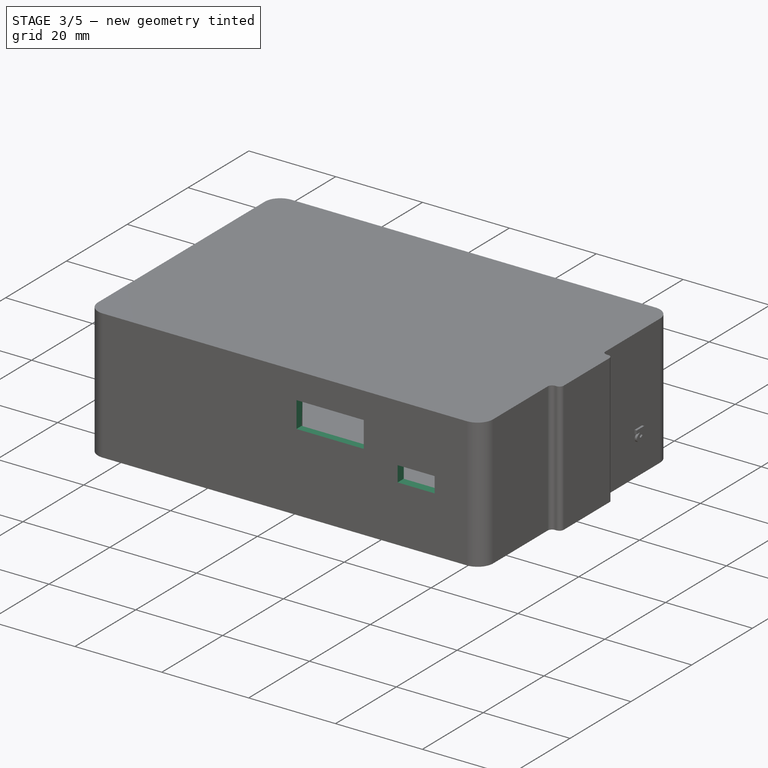
[diagram: stage 3 of 5 — iso view after this stage's code; geometry added in this stage tinted green]
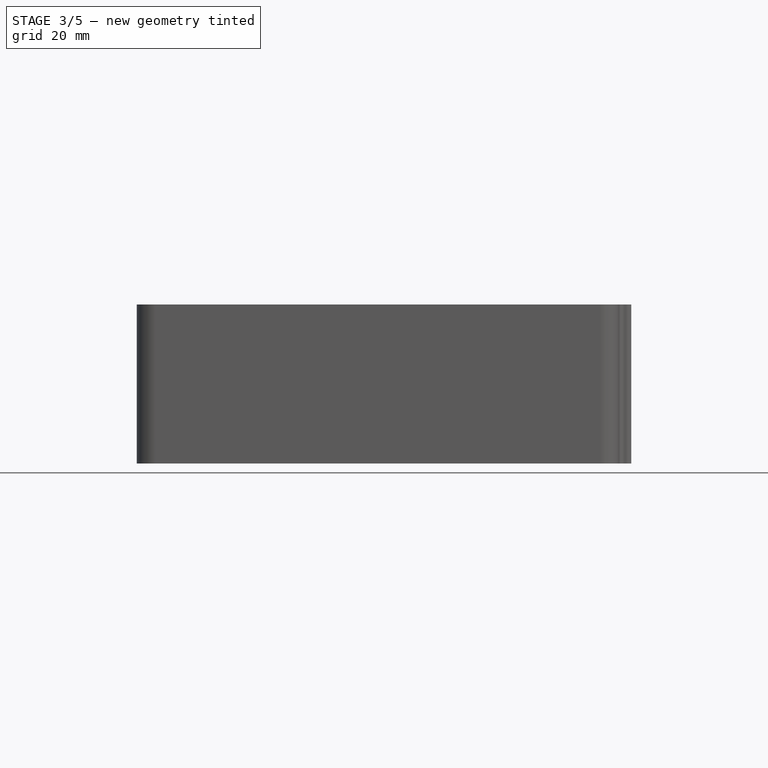
[diagram: stage 3 of 5 — front view after this stage's code; geometry added in this stage tinted green]
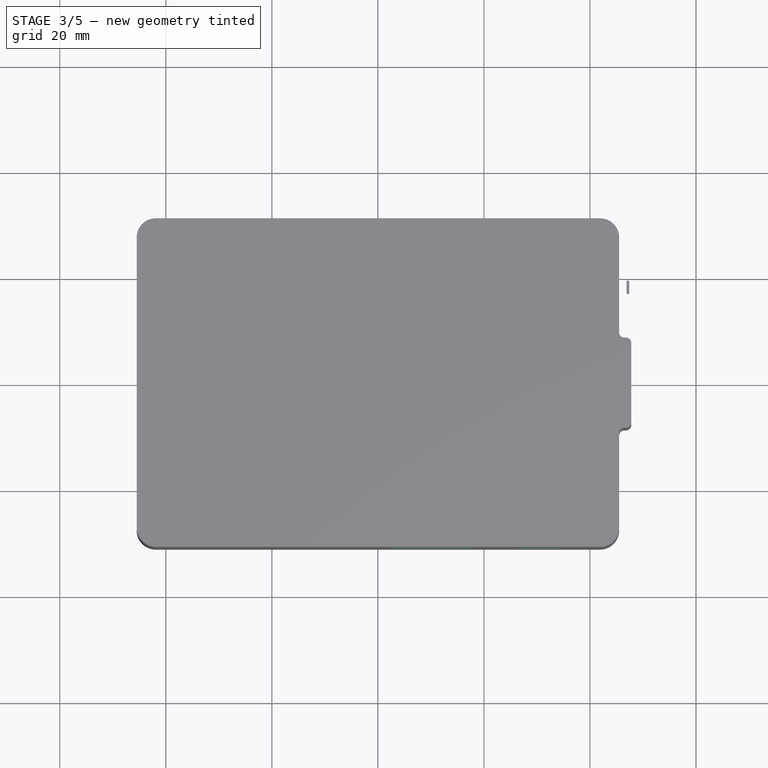
[diagram: stage 3 of 5 — top view after this stage's code; geometry added in this stage tinted green]
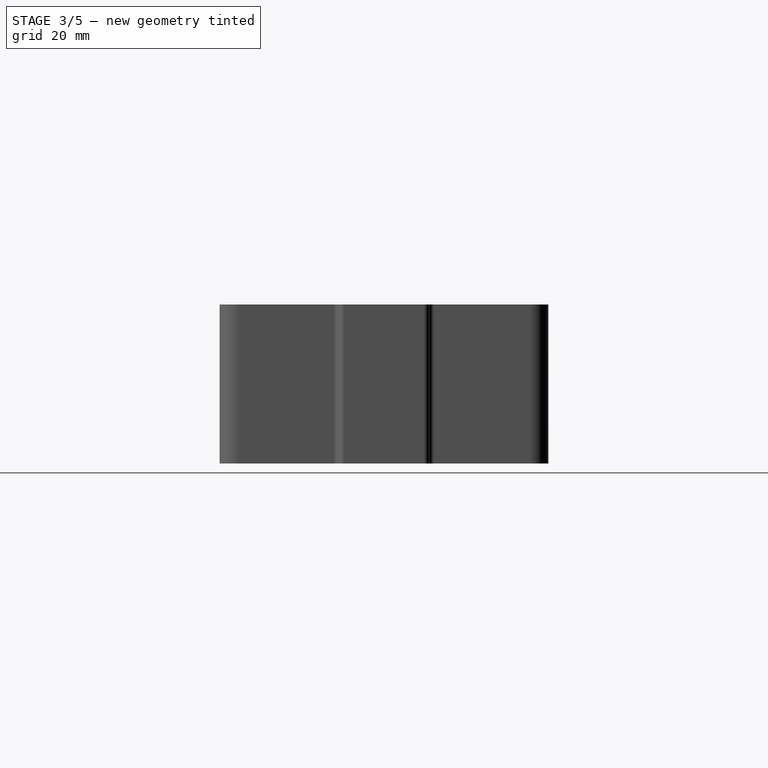
[diagram: stage 3 of 5 — right view after this stage's code; geometry added in this stage tinted green]
FEATURE [Sketcher::SketchObject] Sketch004
  MapMode = 5
  Placement = pos=(0,0,0) rot=(1,0,0;3.14159rad)
  Support = -> [Pocket001]
  sketch-geometry (4):
    g0: LineSegment StartX=-44.5 StartY=25.6 StartZ=0 EndX=-43.5 EndY=25.6 EndZ=0
    g1: LineSegment StartX=-43.5 StartY=25.6 StartZ=0 EndX=-43.5 EndY=9.1 EndZ=0
    g2: LineSegment StartX=-43.5 StartY=9.1 StartZ=0 EndX=-44.5 EndY=9.1 EndZ=0
    g3: LineSegment StartX=-44.5 StartY=9.1 StartZ=0 EndX=-44.5 EndY=25.6 EndZ=0
  constraints (12):
    c: Coincident(g0,g1)
    c: Coincident(g1,g2)
    c: Coincident(g2,g3)
    c: Coincident(g3,g0)
    c: Horizontal(g0)
    c: Horizontal(g2)
    c: Vertical(g1)
    c: Vertical(g3)
    c: DistanceX(g1,g-1) = 43.5
    c: DistanceX(g0,g0) = 1
    c: DistanceY(g3,g3) = 16.5
    c: DistanceY(g-1,g0) = 25.6
FEATURE [PartDesign::Pocket] Pocket002
  BaseFeature = -> Pocket001
  Length = 11
  Length2 = 100
  Profile = -> Sketch004
  Refine = true
  Type = 0
FEATURE [Sketcher::SketchObject] Sketch005
  MapMode = 5
  Placement = pos=(0,0,0) rot=(1,0,0;3.14159rad)
  Support = -> [Pocket002]
  sketch-geometry (4):
    g0: LineSegment StartX=-44.6 StartY=6.48 StartZ=0 EndX=-43.4 EndY=6.48 EndZ=0
    g1: LineSegment StartX=-43.4 StartY=6.48 StartZ=0 EndX=-43.4 EndY=-27.52 EndZ=0
    g2: LineSegment StartX=-43.4 StartY=-27.52 StartZ=0 EndX=-44.6 EndY=-27.52 EndZ=0
    g3: LineSegment StartX=-44.6 StartY=-27.52 StartZ=0 EndX=-44.6 EndY=6.48 EndZ=0
  constraints (12):
    c: Coincident(g0,g1)
    c: Coincident(g1,g2)
    c: Coincident(g2,g3)
    c: Coincident(g3,g0)
    c: Horizontal(g0)
    c: Horizontal(g2)
    c: Vertical(g1)
    c: Vertical(g3)
    c: DistanceX(g0,g-1) = 43.4
    c: DistanceX(g0,g0) = 1.2
    c: DistanceY(g1,g1) = 34
    c: DistanceY(g1,g-1) = 27.52
FEATURE [PartDesign::Pocket] Pocket003
  BaseFeature = -> Pocket002
  Length = 24.95
  Length2 = 100
  Profile = -> Sketch005
  Refine = true
  Type = 0
FEATURE [Sketcher::SketchObject] Sketch006
  MapMode = 5
  Placement = pos=(0,-31,0) rot=(1,0,0;1.5708rad)
  Support = -> [Pocket003]
  sketch-geometry (5):
    g0: LineSegment StartX=18.2 StartY=17.9 StartZ=0 EndX=2.7 EndY=17.9 EndZ=0
    g1: LineSegment StartX=2.7 StartY=17.9 StartZ=0 EndX=2.7 EndY=23.9 EndZ=0
    g2: LineSegment StartX=2.7 StartY=23.9 StartZ=0 EndX=18.2 EndY=23.9 EndZ=0
    g3: LineSegment StartX=18.2 StartY=23.9 StartZ=0 EndX=18.2 EndY=17.9 EndZ=0
    g4: GeomPoint X=0 Y=30 Z=0
  constraints (14):
    c: Coincident(g0,g1)
    c: Coincident(g1,g2)
    c: Coincident(g2,g3)
    c: Coincident(g3,g0)
    c: Horizontal(g0)
    c: Horizontal(g2)
    c: Vertical(g1)
    c: Vertical(g3)
    c: DistanceX(g0,g0) = 15.5
    c: DistanceY(g3,g3) = 6
    c: PointOnObject(g4,g-2)
    c: DistanceY(g-1,g4) = 30
    c: DistanceY(g1,g4) = 6.1
    c: DistanceX(g4,g2) = 18.2
FEATURE [PartDesign::Pocket] Pocket004
  BaseFeature = -> Pocket003
  Length = 2
  Length2 = 100
  Profile = -> Sketch006
  Refine = true
  Type = 0
FEATURE [Sketcher::SketchObject] Sketch007
  MapMode = 5
  Placement = pos=(0,0,0) rot=(1,0,0;3.14159rad)
  Support = -> [Pocket004]
  sketch-geometry (4):
    g0: LineSegment StartX=2.7 StartY=29.3 StartZ=0 EndX=18.2 EndY=29.3 EndZ=0
    g1: LineSegment StartX=18.2 StartY=29.3 StartZ=0 EndX=18.2 EndY=29 EndZ=0
    g2: LineSegment StartX=18.2 StartY=29 StartZ=0 EndX=2.7 EndY=29 EndZ=0
    g3: LineSegment StartX=2.7 StartY=29 StartZ=0 EndX=2.7 EndY=29.3 EndZ=0
  constraints (12):
    c: Coincident(g0,g1)
    c: Coincident(g1,g2)
    c: Coincident(g2,g3)
    c: Coincident(g3,g0)
    c: Horizontal(g0)
    c: Horizontal(g2)
    c: Vertical(g1)
    c: Vertical(g3)
    c: DistanceY(g1,g1) = 0.3
    c: DistanceY(g-1,g2) = 29
    c: DistanceX(g-1,g1) = 18.2
    c: DistanceX(g0,g0) = 15.5
FEATURE [PartDesign::Pocket] Pocket005
  BaseFeature = -> Pocket004
  Length = 19
  Length2 = 100
  Profile = -> Sketch007
  Refine = true
  Type = 0
FEATURE [Sketcher::SketchObject] Sketch008
  MapMode = 5
  Placement = pos=(0,0,0) rot=(1,0,0;3.14159rad)
  Support = -> [Pocket005]
  sketch-geometry (4):
    g0: LineSegment StartX=-14.4 StartY=30.3 StartZ=0 EndX=-7.9 EndY=30.3 EndZ=0
    g1: LineSegment StartX=-7.9 StartY=30.3 StartZ=0 EndX=-7.9 EndY=29 EndZ=0
    g2: LineSegment StartX=-7.9 StartY=29 StartZ=0 EndX=-14.4 EndY=29 EndZ=0
    g3: LineSegment StartX=-14.4 StartY=29 StartZ=0 EndX=-14.4 EndY=30.3 EndZ=0
  constraints (12):
    c: Coincident(g0,g1)
    c: Coincident(g1,g2)
    c: Coincident(g2,g3)
    c: Coincident(g3,g0)
    c: Horizontal(g0)
    c: Horizontal(g2)
    c: Vertical(g1)
    c: Vertical(g3)
    c: DistanceY(g-1,g1) = 29
    c: DistanceX(g0,g0) = 6.5
    c: DistanceY(g1,g1) = 1.3
    c: DistanceX(g0,g-1) = 14.4
FEATURE [PartDesign::Pocket] Pocket006
  BaseFeature = -> Pocket005
  Length = 24.95
  Length2 = 100
  Profile = -> Sketch008
  Refine = true
  Type = 0
FEATURE [Sketcher::SketchObject] Sketch009
  MapMode = 5
  Placement = pos=(0,-31,0) rot=(1,0,0;1.5708rad)
  Support = -> [Pocket006]
  sketch-geometry (5):
    g0: LineSegment StartX=34.5 StartY=13 StartZ=0 EndX=26 EndY=13 EndZ=0
    g1: LineSegment StartX=26 StartY=13 StartZ=0 EndX=26 EndY=16.6 EndZ=0
    g2: LineSegment StartX=26 StartY=16.6 StartZ=0 EndX=34.5 EndY=16.6 EndZ=0
    g3: LineSegment StartX=34.5 StartY=16.6 StartZ=0 EndX=34.5 EndY=13 EndZ=0
    g4: GeomPoint X=-0.112375 Y=30 Z=0
  constraints (13):
    c: Coincident(g0,g1)
    c: Coincident(g1,g2)
    c: Coincident(g2,g3)
    c: Coincident(g3,g0)
    c: Horizontal(g0)
    c: Horizontal(g2)
    c: Vertical(g1)
    c: Vertical(g3)
    c: DistanceY(g-1,g4) = 30
    c: DistanceY(g0,g4) = 17
    c: DistanceY(g1,g1) = 3.6
    c: DistanceX(g2,g2) = 8.5
    c: DistanceX(g-1,g0) = 34.5
FEATURE [PartDesign::Pocket] Pocket007
  BaseFeature = -> Pocket006
  Length = 2
  Length2 = 100
  Profile = -> Sketch009
  Refine = true
  Type = 0
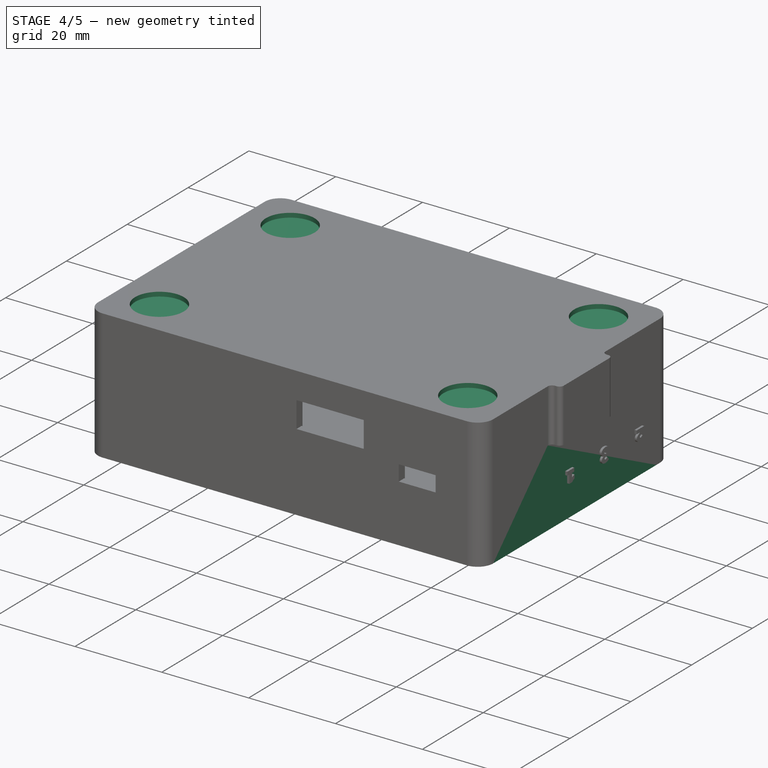
[diagram: stage 4 of 5 — iso view after this stage's code; geometry added in this stage tinted green]
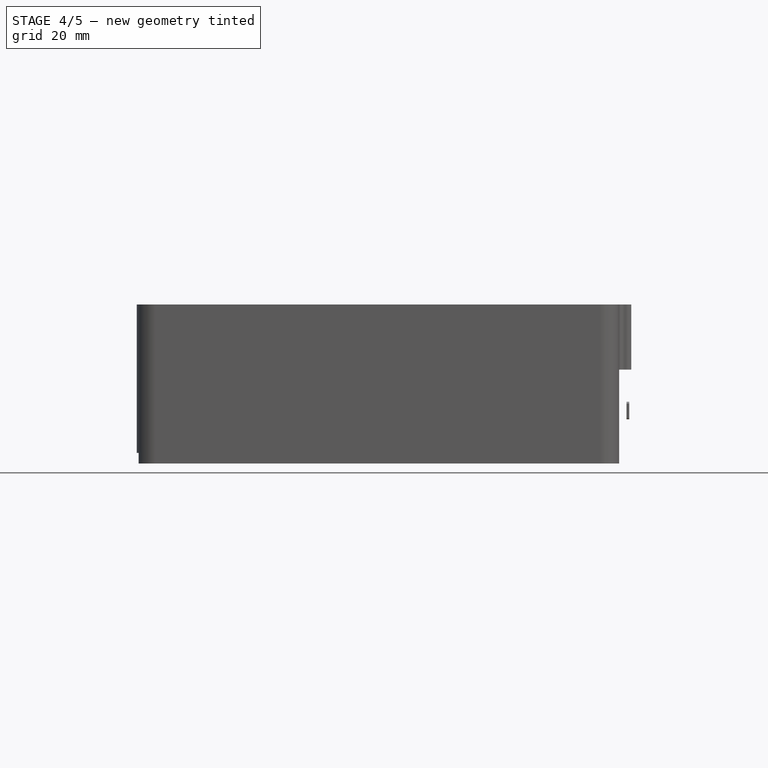
[diagram: stage 4 of 5 — front view after this stage's code; geometry added in this stage tinted green]
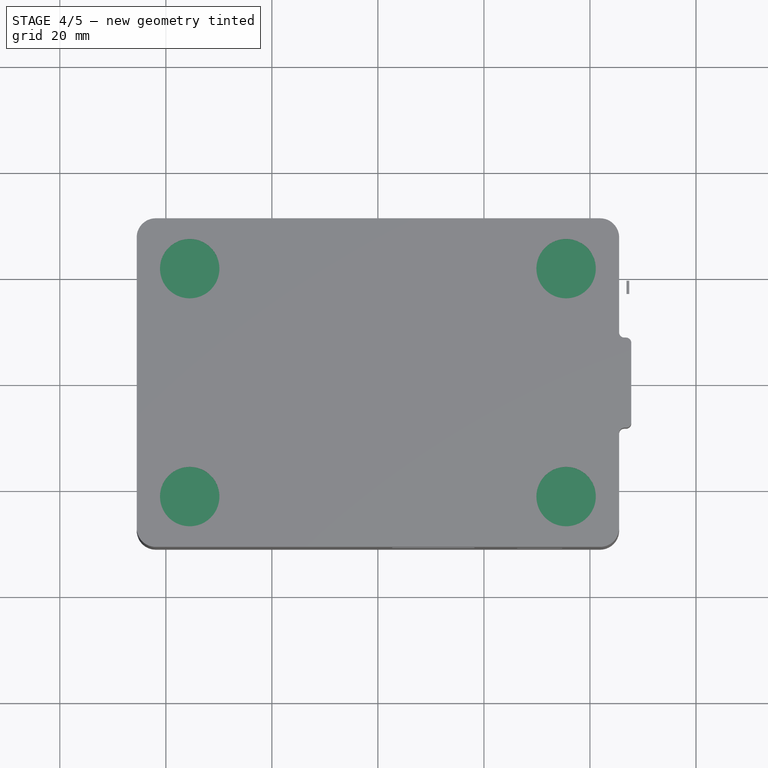
[diagram: stage 4 of 5 — top view after this stage's code; geometry added in this stage tinted green]
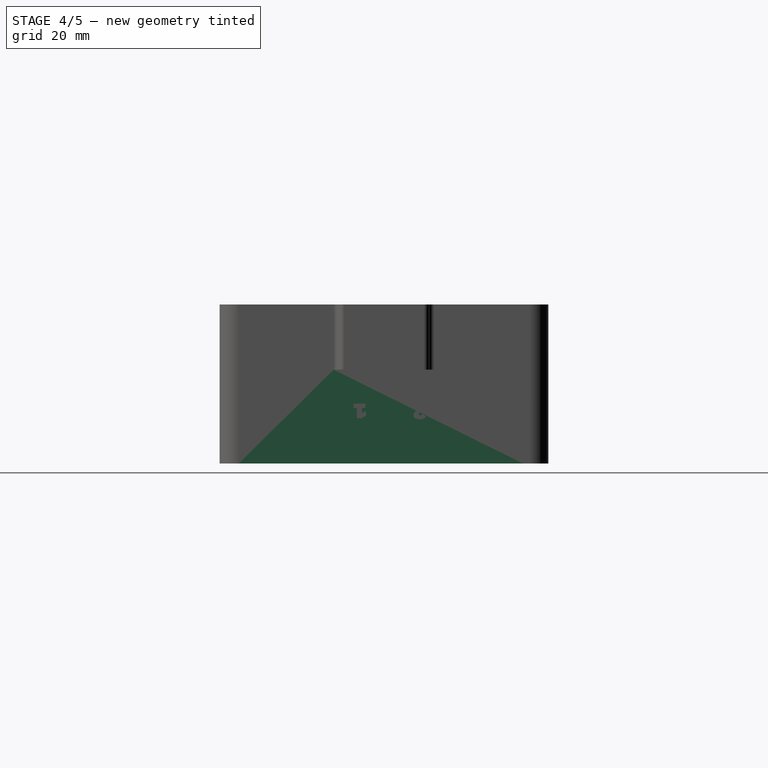
[diagram: stage 4 of 5 — right view after this stage's code; geometry added in this stage tinted green]
FEATURE [Sketcher::SketchObject] Sketch015
  MapMode = 5
  Placement = pos=(0,0,0) rot=(1,0,0;3.14159rad)
  Support = -> [Pocket007]
  sketch-geometry (5):
    g0: GeomPoint X=-45.5 Y=29 Z=0
    g1: LineSegment StartX=-45.5 StartY=29 StartZ=0 EndX=-41.5334 EndY=29 EndZ=0
    g2: LineSegment StartX=-41.5334 StartY=29 StartZ=0 EndX=-41.5334 EndY=-29 EndZ=0
    g3: LineSegment StartX=-41.5334 StartY=-29 StartZ=0 EndX=-45.5 EndY=-29 EndZ=0
    g4: LineSegment StartX=-45.5 StartY=-29 StartZ=0 EndX=-45.5 EndY=29 EndZ=0
  constraints (12):
    c: DistanceX(g0,g-1) = 45.5
    c: DistanceY(g-1,g0) = 29
    c: Coincident(g1,g2)
    c: Coincident(g2,g3)
    c: Coincident(g3,g4)
    c: Coincident(g4,g1)
    c: Horizontal(g1)
    c: Horizontal(g3)
    c: Vertical(g2)
    c: Vertical(g4)
    c: Coincident(g1,g0)
    c: Symmetric(g3,g0,g-1)
FEATURE [PartDesign::Pocket] Pocket009
  BaseFeature = -> Pocket007
  Length = 2
  Length2 = 100
  Profile = -> Sketch015
  Refine = true
  Type = 0
FEATURE [PartDesign::Body] Body002  label="Botonera"
  Group = -> [Sketch023,Pad005,Sketch024,Pad006]
  Origin = -> Origin002
  Placement = pos=(43,-6.6,10) rot=(0,0,1;0rad)
  Tip = -> Pad006
FEATURE [Sketcher::SketchObject] Sketch016
  MapMode = 5
  Placement = pos=(0,0,0) rot=(1,0,0;3.14159rad)
  Support = -> [Pocket009]
  sketch-geometry (4):
    g0: LineSegment StartX=26.5 StartY=29.2 StartZ=0 EndX=36.5 EndY=29.2 EndZ=0
    g1: LineSegment StartX=36.5 StartY=29.2 StartZ=0 EndX=36.5 EndY=29 EndZ=0
    g2: LineSegment StartX=36.5 StartY=29 StartZ=0 EndX=26.5 EndY=29 EndZ=0
    g3: LineSegment StartX=26.5 StartY=29 StartZ=0 EndX=26.5 EndY=29.2 EndZ=0
  constraints (10):
    c: Coincident(g0,g1)
    c: Coincident(g1,g2)
    c: Coincident(g2,g3)
    c: Coincident(g3,g0)
    c: Horizontal(g2)
    c: Vertical(g1)
    c: DistanceY(g1,g1) = 0.2
    c: DistanceY(g-1,g2) = 29
    c: DistanceX(g-1,g1) = 36.5
    c: DistanceX(g0,g0) = 10
FEATURE [PartDesign::Pocket] Pocket010
  BaseFeature = -> Pocket009
  Length = 24.95
  Length2 = 100
  Profile = -> Sketch016
  Refine = true
  Type = 0
FEATURE [Sketcher::SketchObject] Sketch019
  MapMode = 5
  Placement = pos=(0,0,24.95) rot=(1,0,0;3.14159rad)
  Support = -> [Pocket010]
  sketch-geometry (6):
    g0: GeomPoint X=0 Y=30 Z=0
    g1: GeomPoint X=0 Y=19.7 Z=0
    g2: LineSegment StartX=8.27249 StartY=19.7 StartZ=0 EndX=-8.24638 EndY=19.7 EndZ=0
    g3: LineSegment StartX=-8.24638 StartY=19.7 StartZ=0 EndX=-8.24638 EndY=0 EndZ=0
    g4: LineSegment StartX=-8.24638 StartY=0 StartZ=0 EndX=8.27249 EndY=0 EndZ=0
    g5: LineSegment StartX=8.27249 StartY=0 StartZ=0 EndX=8.27249 EndY=19.7 EndZ=0
  constraints (14):
    c: PointOnObject(g0,g-2)
    c: DistanceY(g0) = 30
    c: PointOnObject(g1,g-2)
    c: DistanceY(g1,g0) = 10.3
    c: Coincident(g2,g3)
    c: Coincident(g3,g4)
    c: Coincident(g4,g5)
    c: Coincident(g5,g2)
    c: Horizontal(g2)
    c: Horizontal(g4)
    c: Vertical(g3)
    c: Vertical(g5)
    c: PointOnObject(g3,g-1)
    c: PointOnObject(g1,g2)
FEATURE [PartDesign::Pad] Pad004
  BaseFeature = -> Pocket010
  Length = 2.3
  Length2 = 100
  Profile = -> Sketch019
  Refine = true
  Type = 0
FEATURE [Sketcher::SketchObject] Sketch020
  MapMode = 5
  Placement = pos=(0,0,0) rot=(1,0,0;3.14159rad)
  Support = -> [Pad004]
  sketch-geometry (4):
    g0: LineSegment StartX=45.5 StartY=17.7095 StartZ=0 EndX=48 EndY=17.7095 EndZ=0
    g1: LineSegment StartX=48 StartY=17.7095 StartZ=0 EndX=48 EndY=-26.2343 EndZ=0
    g2: LineSegment StartX=48 StartY=-26.2343 StartZ=0 EndX=45.5 EndY=-26.2343 EndZ=0
    g3: LineSegment StartX=45.5 StartY=-26.2343 StartZ=0 EndX=45.5 EndY=17.7095 EndZ=0
  constraints (10):
    c: Coincident(g0,g1)
    c: Coincident(g1,g2)
    c: Coincident(g2,g3)
    c: Coincident(g3,g0)
    c: Horizontal(g0)
    c: Horizontal(g2)
    c: Vertical(g1)
    c: Vertical(g3)
    c: DistanceX(g-1,g0) = 45.5
    c: DistanceX(g-1,g0) = 48
FEATURE [PartDesign::Pocket] Pocket011
  BaseFeature = -> Pad004
  Length = 17.7
  Length2 = 100
  Profile = -> Sketch020
  Refine = true
  Type = 0
FEATURE [Sketcher::SketchObject] Sketch021
  MapMode = 5
  Placement = pos=(0,0,30) rot=(0,0,1;0rad)
  Support = -> [Pocket011]
  sketch-geometry (4):
    g0: Circle CenterX=-35.5 CenterY=21.5 CenterZ=0 NormalX=0 NormalY=0 NormalZ=1 AngleXU=0 Radius=5.6
    g1: Circle CenterX=35.5 CenterY=21.5 CenterZ=0 NormalX=0 NormalY=0 NormalZ=1 AngleXU=0 Radius=5.6
    g2: Circle CenterX=35.5 CenterY=-21.5 CenterZ=0 NormalX=0 NormalY=0 NormalZ=1 AngleXU=0 Radius=5.6
    g3: Circle CenterX=-35.5 CenterY=-21.5 CenterZ=0 NormalX=0 NormalY=0 NormalZ=1 AngleXU=0 Radius=5.6
  constraints (12):
    c: Radius(g3) = 5.6
    c: Radius(g2) = 5.6
    c: Radius(g1) = 5.6
    c: Radius(g0) = 5.6
    c: DistanceX(g0,g-1) = 35.5
    c: DistanceX(g1) = 35.5
    c: DistanceX(g2) = 35.5
    c: DistanceX(g3,g-1) = 35.5
    c: DistanceY(g3,g-1) = 21.5
    c: DistanceY(g0) = 21.5
    c: DistanceY(g1) = 21.5
    c: DistanceY(g2) = -21.5
FEATURE [PartDesign::Pocket] Pocket012
  BaseFeature = -> Pocket011
  Length = 1
  Length2 = 100
  Profile = -> Sketch021
  Refine = true
  Type = 0
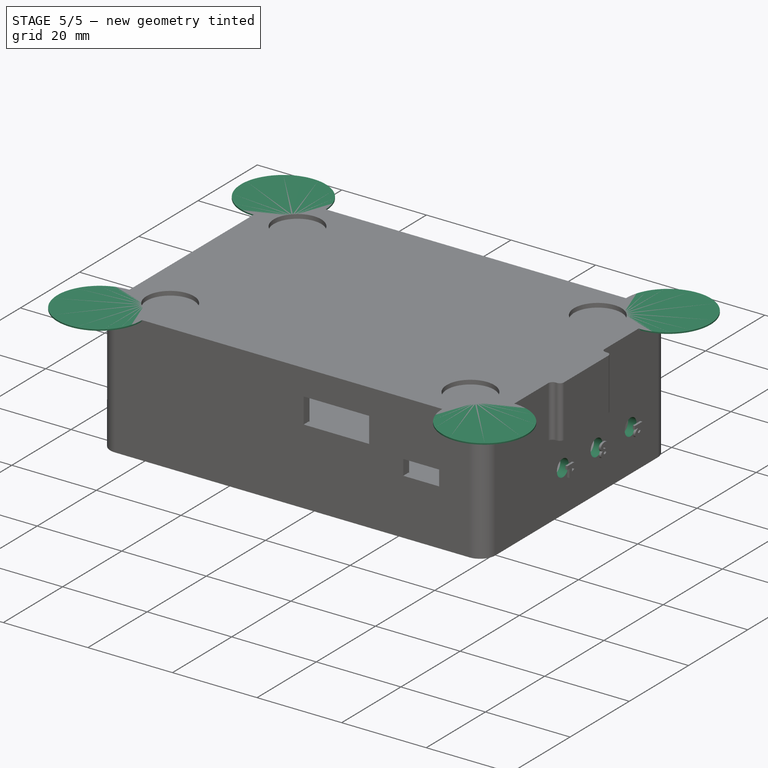
[diagram: stage 5 of 5 — iso view after this stage's code; geometry added in this stage tinted green]
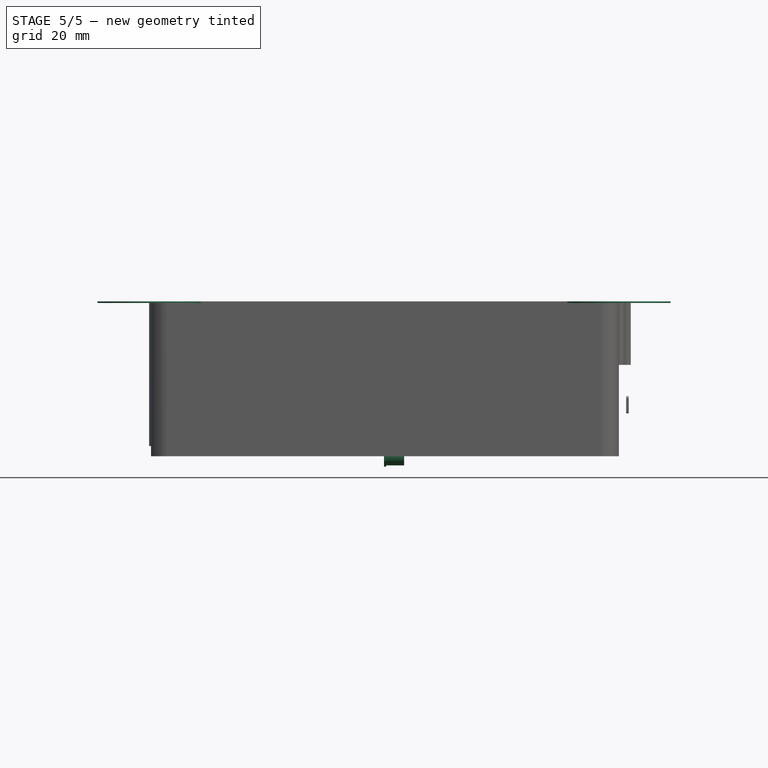
[diagram: stage 5 of 5 — front view after this stage's code; geometry added in this stage tinted green]
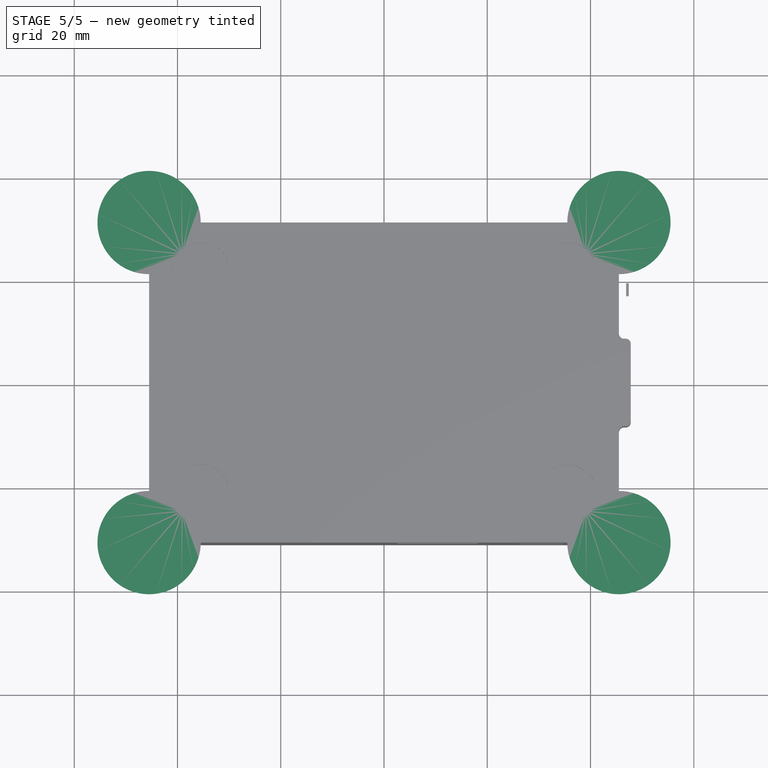
[diagram: stage 5 of 5 — top view after this stage's code; geometry added in this stage tinted green]
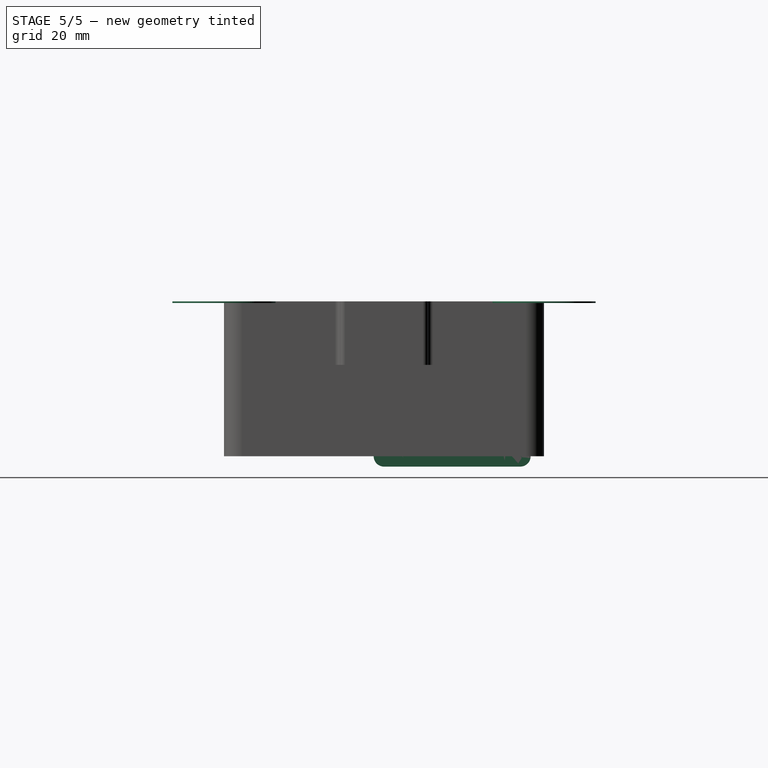
[diagram: stage 5 of 5 — right view after this stage's code; geometry added in this stage tinted green]
FEATURE [Sketcher::SketchObject] Sketch023
  MapMode = 5
  Placement = pos=(0,0,0) rot=(0.57735,0.57735,0.57735;2.0944rad)
  Support = -> [YZ_Plane002]
  sketch-geometry (6):
    g0: ArcOfCircle CenterX=26.4 CenterY=2e-12 CenterZ=0 NormalX=0 NormalY=0 NormalZ=1 AngleXU=0 Radius=2 StartAngle=4.71239 EndAngle=7.85398
    g1: ArcOfCircle CenterX=0 CenterY=0 CenterZ=0 NormalX=0 NormalY=0 NormalZ=1 AngleXU=0 Radius=2 StartAngle=1.5708 EndAngle=4.71239
    g2: LineSegment StartX=26.4 StartY=2 StartZ=0 EndX=4.7e-11 EndY=2 EndZ=0
    g3: LineSegment StartX=26.4 StartY=-2 StartZ=0 EndX=7.1e-11 EndY=-2 EndZ=0
    g4: GeomPoint X=-2 Y=0 Z=0
    g5: GeomPoint X=28.4 Y=2e-12 Z=0
  constraints (13):
    c: Tangent(g0,g3) = 1.5708
    c: Tangent(g0,g2) = -1.5708
    c: Tangent(g2,g1) = -1.5708
    c: Tangent(g3,g1) = 1.5708
    c: Horizontal(g2)
    c: Equal(g0,g1)
    c: PointOnObject(g4,g1)
    c: PointOnObject(g5,g0)
    c: DistanceX(g4,g5) = 30.4
    c: DistanceY(g4,g1) = 0
    c: DistanceY(g0,g5) = 0
    c: DistanceY(g1,g1) = 2
    c: Coincident(g1,g-1)
FEATURE [PartDesign::Pad] Pad005
  Length = 0.4
  Length2 = 100
  Placement = pos=(0,0,0) rot=(0.57735,0.57735,0.57735;2.0944rad)
  Profile = -> Sketch023
  Refine = true
  Type = 0
FEATURE [Sketcher::SketchObject] Sketch024
  MapMode = 5
  Placement = pos=(0.4,0,0) rot=(0.57735,0.57735,0.57735;2.0944rad)
  Support = -> [Pad005]
  sketch-geometry (3):
    g0: Circle CenterX=2 CenterY=0 CenterZ=0 NormalX=0 NormalY=0 NormalZ=1 AngleXU=0 Radius=1.75
    g1: Circle CenterX=13.4 CenterY=-0.004854 CenterZ=0 NormalX=0 NormalY=0 NormalZ=1 AngleXU=0 Radius=1.75
    g2: Circle CenterX=24.9 CenterY=0 CenterZ=0 NormalX=0 NormalY=0 NormalZ=1 AngleXU=0 Radius=1.75
  constraints (8):
    c: PointOnObject(g0,g-1)
    c: Radius(g0) = 1.75
    c: DistanceX(g-1,g0) = 2
    c: PointOnObject(g2,g-1)
    c: Radius(g2) = 1.75
    c: Radius(g1) = 1.75
    c: DistanceX(g0,g1) = 11.4
    c: DistanceX(g1,g2) = 11.5
FEATURE [PartDesign::Pad] Pad006
  BaseFeature = -> Pad005
  Length = 3.5
  Length2 = 100
  Placement = pos=(0,0,0) rot=(0.57735,0.57735,0.57735;2.0944rad)
  Profile = -> Sketch024
  Refine = true
  Type = 0
FEATURE [Sketcher::SketchObject] Sketch022
  MapMode = 5
  Placement = pos=(45.5,0,0) rot=(0.57735,0.57735,0.57735;2.0944rad)
  Support = -> [Pocket012]
  sketch-geometry (6):
    g0: GeomPoint X=0 Y=10 Z=0
    g1: GeomPoint X=0 Y=30 Z=0
    g2: Circle CenterX=6.8 CenterY=10 CenterZ=0 NormalX=0 NormalY=0 NormalZ=1 AngleXU=0 Radius=2
    g3: Circle CenterX=18.3 CenterY=10 CenterZ=0 NormalX=0 NormalY=0 NormalZ=1 AngleXU=0 Radius=2
    g4: Circle CenterX=-4.6 CenterY=10 CenterZ=0 NormalX=0 NormalY=0 NormalZ=1 AngleXU=0 Radius=2
    g5: GeomPoint X=31 Y=10 Z=0
  constraints (15):
    c: PointOnObject(g0,g-2)
    c: PointOnObject(g1,g-2)
    c: DistanceY(g-1,g1) = 30
    c: DistanceY(g0,g1) = 20
    c: Radius(g4) = 2
    c: Radius(g2) = 2
    c: Radius(g3) = 2
    c: DistanceX(g4,g2) = 11.4
    c: DistanceY(g0,g4) = 0
    c: DistanceY(g2,g0) = 0
    c: DistanceY(g3,g0) = 0
    c: DistanceX(g2,g3) = 11.5
    c: DistanceY(g0,g5) = 0
    c: DistanceX(g-1,g5) = 31
    c: DistanceX(g3,g5) = 12.7
FEATURE [PartDesign::Pocket] Pocket013
  BaseFeature = -> Pocket012
  Length = 2
  Length2 = 100
  Profile = -> Sketch022
  Refine = true
  Type = 0
FEATURE [Sketcher::SketchObject] Sketch025
  MapMode = 5
  Placement = pos=(0,0,30) rot=(0,0,1;0rad)
  Support = -> [Pocket013]
  sketch-geometry (12):
    g0: GeomPoint X=45.5 Y=31 Z=0
    g1: ArcOfCircle CenterX=45.5 CenterY=31 CenterZ=0 NormalX=0 NormalY=0 NormalZ=1 AngleXU=0 Radius=10 StartAngle=4.71185 EndAngle=9.43146
    g2: GeomPoint X=-45.5 Y=31 Z=0
    g3: GeomPoint X=-45.5 Y=-31 Z=0
    g4: GeomPoint X=45.5 Y=-31 Z=0
    g5: ArcOfCircle CenterX=45.5 CenterY=-31 CenterZ=0 NormalX=0 NormalY=0 NormalZ=1 AngleXU=0 Radius=10.0002 StartAngle=3.1245 EndAngle=7.85995
    g6: ArcOfCircle CenterX=-45.5 CenterY=-31 CenterZ=0 NormalX=0 NormalY=0 NormalZ=1 AngleXU=0 Radius=10.0013 StartAngle=1.55437 EndAngle=6.29411
    g7: ArcOfCircle CenterX=-45.5 CenterY=31 CenterZ=0 NormalX=0 NormalY=0 NormalZ=1 AngleXU=0 Radius=10.0003 StartAngle=6.27555 EndAngle=11.0062
    g8: LineSegment StartX=-35.5 StartY=30.9237 StartZ=0 EndX=-45.394 EndY=21.0003 EndZ=0
    g9: LineSegment StartX=-35.4992 StartY=-30.8907 StartZ=0 EndX=-45.3357 EndY=-21 EndZ=0
    g10: LineSegment StartX=45.4403 StartY=-21 StartZ=0 EndX=35.5013 EndY=-30.829 EndZ=0
    g11: LineSegment StartX=45.4946 StartY=21 StartZ=0 EndX=35.5002 EndY=30.9332 EndZ=0
  constraints (24):
    c: DistanceX(g0) = 45.5
    c: DistanceY(g0) = 31
    c: Coincident(g1,g0)
    c: DistanceY(g1,g0) = 10
    c: DistanceX(g2) = -45.5
    c: DistanceY(g2) = 31
    c: DistanceY(g3) = -31
    c: DistanceX(g3) = -45.5
    c: DistanceY(g4) = -31
    c: DistanceX(g4) = 45.5
    c: Coincident(g5,g4)
    c: DistanceY(g4,g5) = 10
    c: Coincident(g6,g3)
    c: DistanceY(g3,g6) = 10
    c: Coincident(g7,g2)
    c: DistanceX(g2,g7) = 10
    c: Coincident(g8,g7)
    c: Coincident(g8,g7)
    c: Coincident(g9,g6)
    c: Coincident(g9,g6)
    c: Coincident(g10,g5)
    c: Coincident(g10,g5)
    c: Coincident(g11,g1)
    c: Coincident(g11,g1)
FEATURE [PartDesign::Pad] Pad007
  BaseFeature = -> Pocket013
  Length = 0.3
  Length2 = 100
  Profile = -> Sketch025
  Refine = true
  Reversed = true
  Type = 0
FEATURE [Part::Cut] Cut
  Base = -> Pad007
  Refine = true
  Tool = -> Pad001
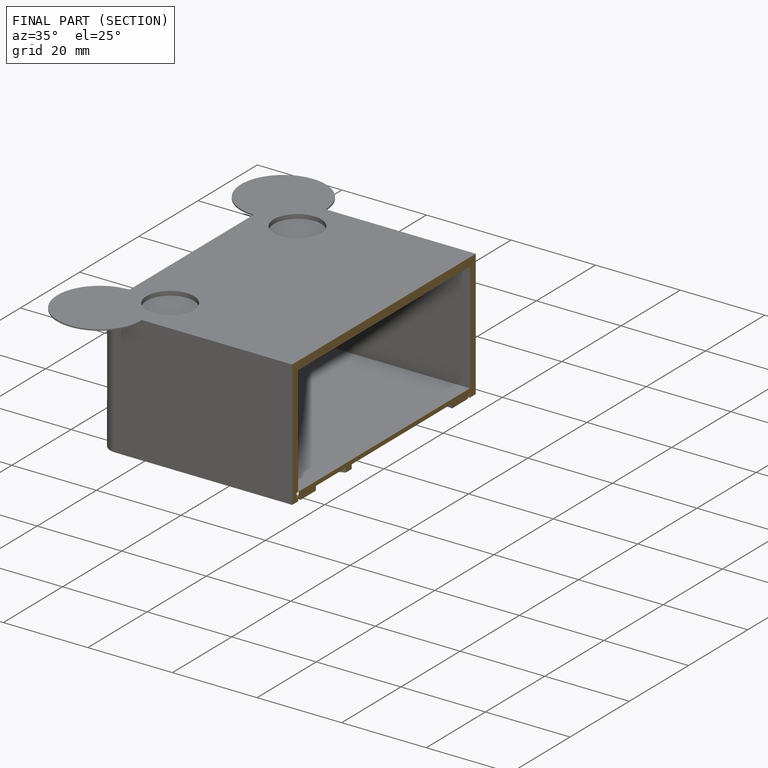
[diagram: finished part — half-section view (interior)]
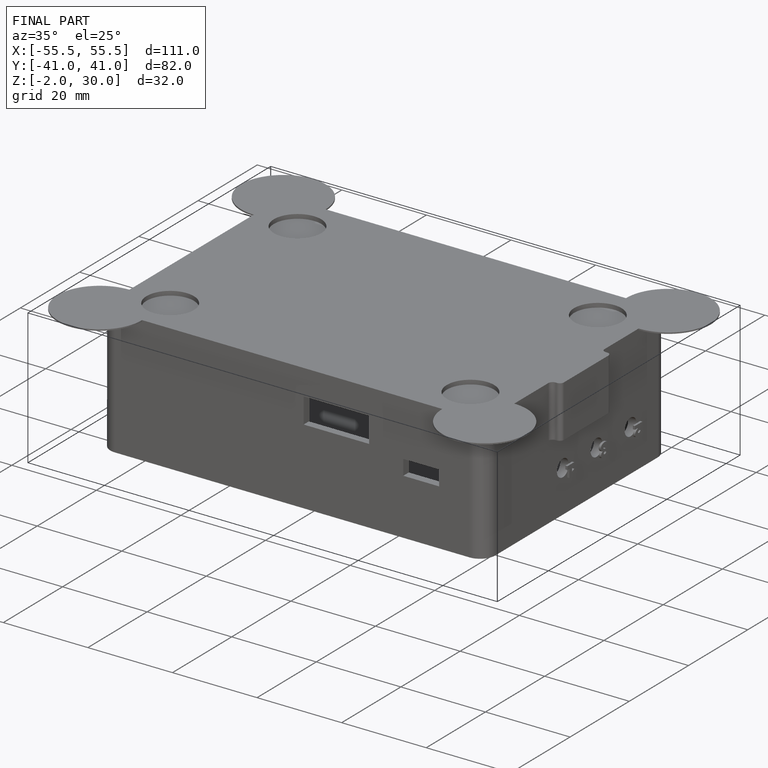
[diagram: finished part — iso view with bounding-box wireframe]
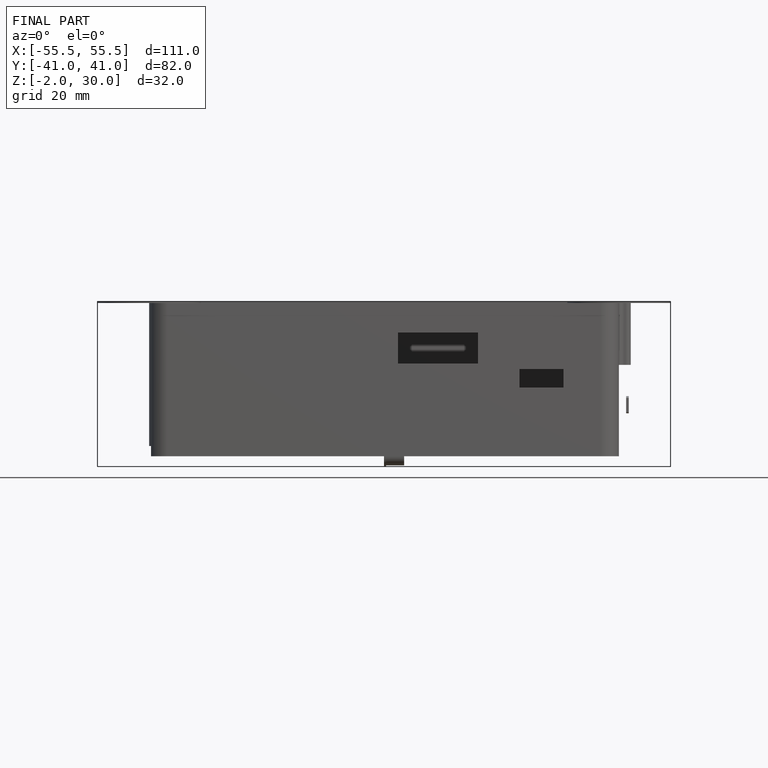
[diagram: finished part — front view with bounding-box wireframe]
